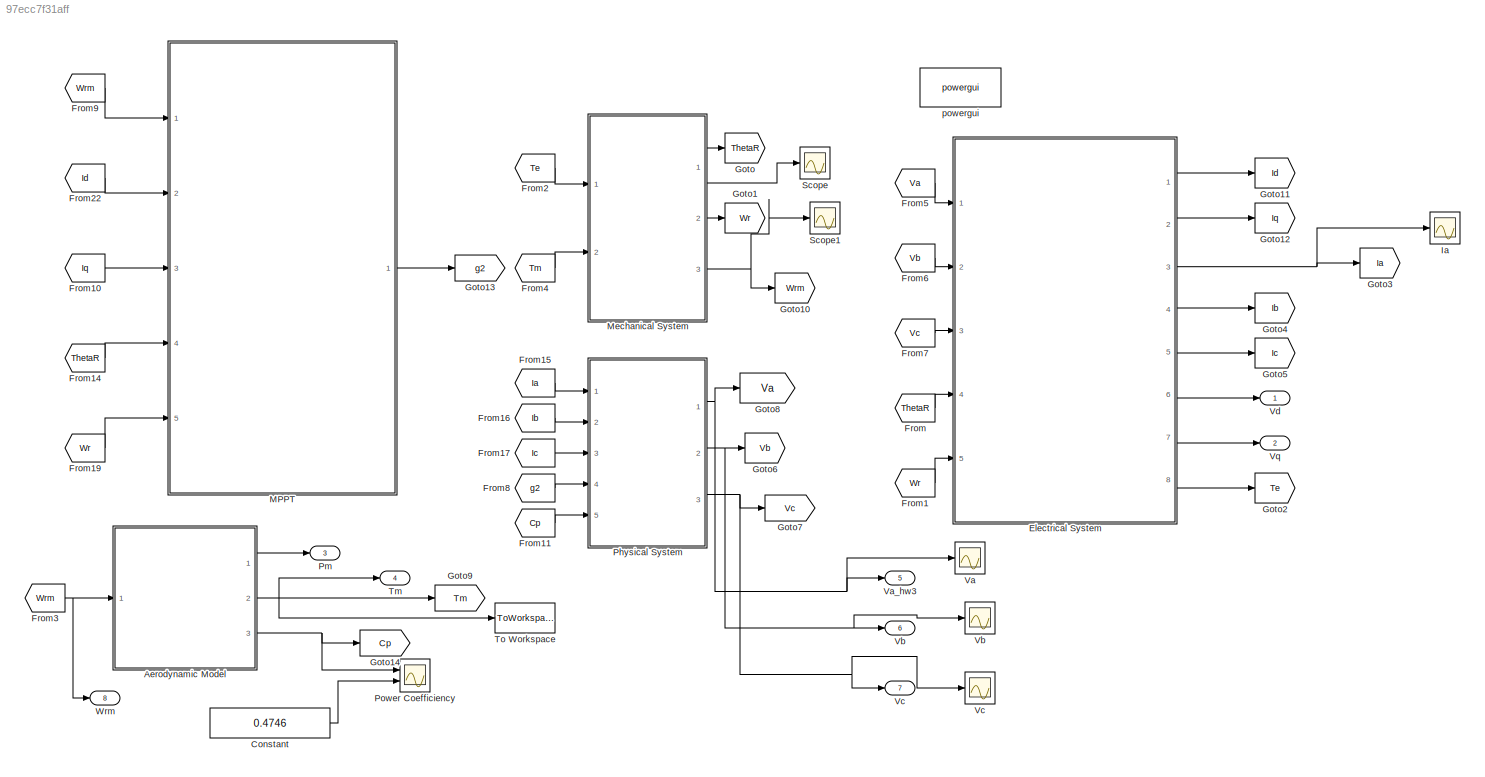
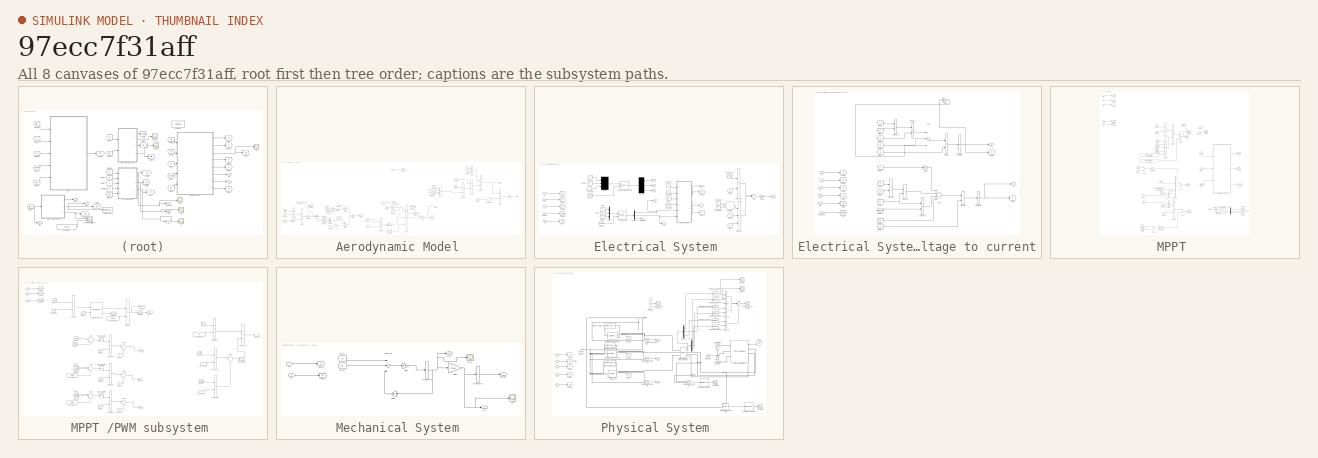
[diagram: thumbnail index - all 8 canvases of the model, root first then tree order]
MODEL slx_97ecc7f31aff
KIND model
CONFIG AbsTol = auto
CONFIG EnableMultiTasking = off
CONFIG FixedStep = auto
CONFIG MaxStep = auto
CONFIG MinStep = auto
CONFIG RelTol = 1e-3
CONFIG SampleTimeConstraint = Unconstrained
CONFIG Solver = ode45
CONFIG SolverName = ode45
CONFIG StartTime = 0.0
CONFIG StopTime = 4
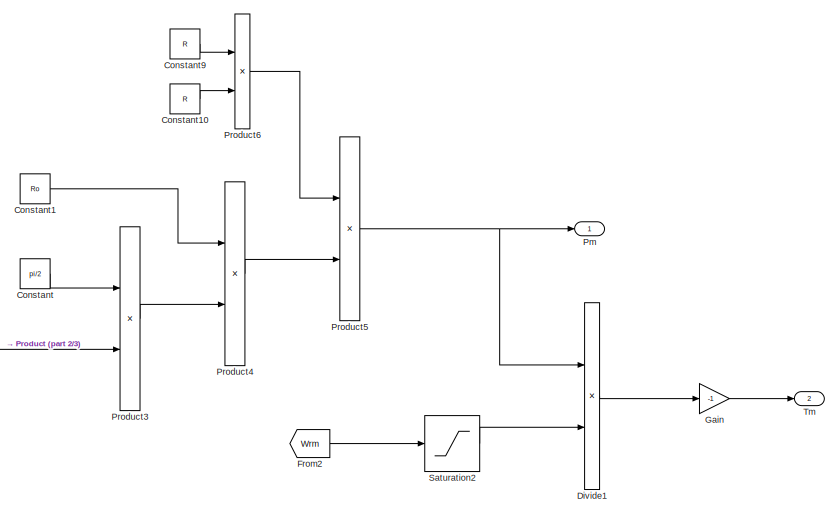
[diagram: Aerodynamic Model  - part 1/3, top right region]
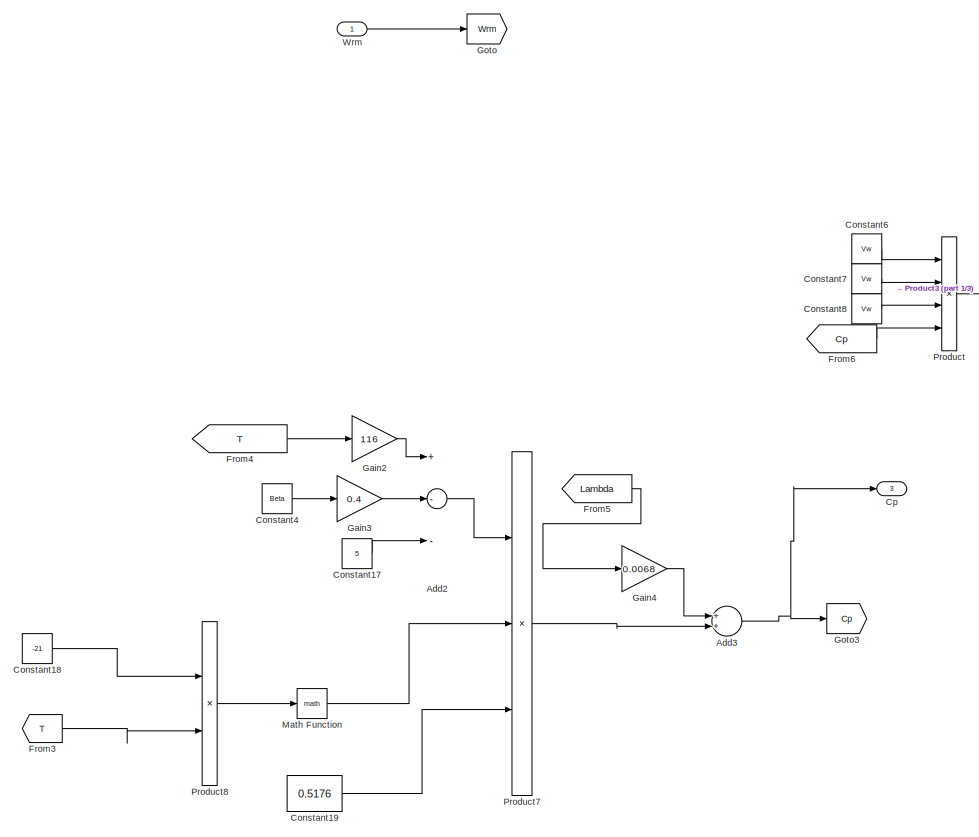
[diagram: Aerodynamic Model  - part 2/3, center side, full height]
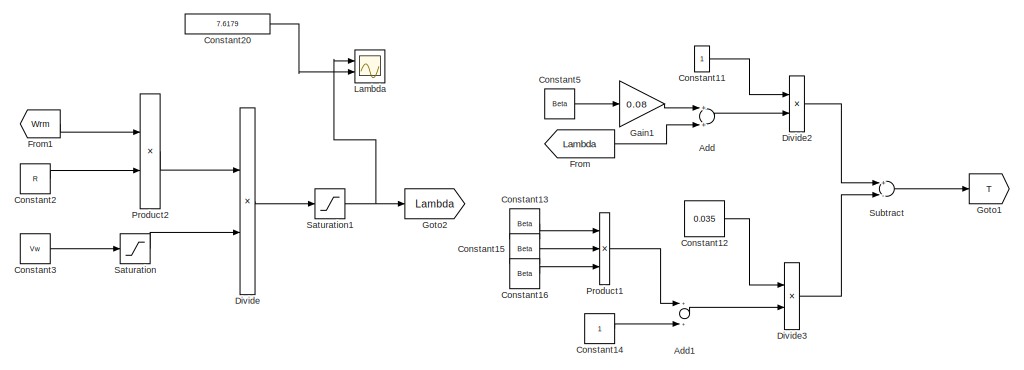
[diagram: Aerodynamic Model  - part 3/3, bottom left region]
BLOCK [SubSystem] Aerodynamic Model 
  Ports = [1, 3]
  RequestExecContextInheritance = off
BLOCK [Sum] Aerodynamic Model /Add
  InputSameDT = off
  OutDataTypeStr = Inherit: Inherit via internal rule
  Ports = [2, 1]
  SaturateOnIntegerOverflow = off
BLOCK [Sum] Aerodynamic Model /Add1
  InputSameDT = off
  OutDataTypeStr = Inherit: Inherit via internal rule
  Ports = [2, 1]
  SaturateOnIntegerOverflow = off
BLOCK [Sum] Aerodynamic Model /Add2
  InputSameDT = off
  Inputs = +--
  OutDataTypeStr = Inherit: Inherit via internal rule
  Ports = [3, 1]
  SaturateOnIntegerOverflow = off
BLOCK [Sum] Aerodynamic Model /Add3
  InputSameDT = off
  OutDataTypeStr = Inherit: Inherit via internal rule
  Ports = [2, 1]
  SaturateOnIntegerOverflow = off
BLOCK [Constant] Aerodynamic Model /Constant
  Value = pi/2
BLOCK [Constant] Aerodynamic Model /Constant1
  Value = Ro
BLOCK [Constant] Aerodynamic Model /Constant10
  Value = R
BLOCK [Constant] Aerodynamic Model /Constant11
BLOCK [Constant] Aerodynamic Model /Constant12
  Value = 0.035
BLOCK [Constant] Aerodynamic Model /Constant13
  Value = Beta
BLOCK [Constant] Aerodynamic Model /Constant14
BLOCK [Constant] Aerodynamic Model /Constant15
  Value = Beta
BLOCK [Constant] Aerodynamic Model /Constant16
  Value = Beta
BLOCK [Constant] Aerodynamic Model /Constant17
  Value = 5
BLOCK [Constant] Aerodynamic Model /Constant18
  Value = -21
BLOCK [Constant] Aerodynamic Model /Constant19
  Value = 0.5176
BLOCK [Constant] Aerodynamic Model /Constant2
  Value = R
BLOCK [Constant] Aerodynamic Model /Constant20
  Value = 7.6179
BLOCK [Constant] Aerodynamic Model /Constant3
  Value = Vw
BLOCK [Constant] Aerodynamic Model /Constant4
  Value = Beta
BLOCK [Constant] Aerodynamic Model /Constant5
  Value = Beta
BLOCK [Constant] Aerodynamic Model /Constant6
  Value = Vw
BLOCK [Constant] Aerodynamic Model /Constant7
  Value = Vw
BLOCK [Constant] Aerodynamic Model /Constant8
  Value = Vw
BLOCK [Constant] Aerodynamic Model /Constant9
  Value = R
BLOCK [Outport] Aerodynamic Model /Cp 
  IconDisplay = Port number
  Port = 3
BLOCK [Product] Aerodynamic Model /Divide
  InputSameDT = off
  Inputs = */
  OutDataTypeStr = Inherit: Inherit via internal rule
  Ports = [2, 1]
  RndMeth = Floor
  SaturateOnIntegerOverflow = off
BLOCK [Product] Aerodynamic Model /Divide1
  InputSameDT = off
  Inputs = */
  OutDataTypeStr = Inherit: Inherit via internal rule
  Ports = [2, 1]
  RndMeth = Floor
  SaturateOnIntegerOverflow = off
BLOCK [Product] Aerodynamic Model /Divide2
  InputSameDT = off
  Inputs = */
  OutDataTypeStr = Inherit: Inherit via internal rule
  Ports = [2, 1]
  RndMeth = Floor
  SaturateOnIntegerOverflow = off
BLOCK [Product] Aerodynamic Model /Divide3
  InputSameDT = off
  Inputs = */
  OutDataTypeStr = Inherit: Inherit via internal rule
  Ports = [2, 1]
  RndMeth = Floor
  SaturateOnIntegerOverflow = off
BLOCK [From] Aerodynamic Model /From
  GotoTag = Lambda
BLOCK [From] Aerodynamic Model /From1
  GotoTag = Wrm
BLOCK [From] Aerodynamic Model /From2
  GotoTag = Wrm
BLOCK [From] Aerodynamic Model /From3
  GotoTag = T
BLOCK [From] Aerodynamic Model /From4
  GotoTag = T
BLOCK [From] Aerodynamic Model /From5
  GotoTag = Lambda
BLOCK [From] Aerodynamic Model /From6
  GotoTag = Cp
BLOCK [Gain] Aerodynamic Model /Gain
  Gain = -1
  OutDataTypeStr = Inherit: Inherit via internal rule
  ParamDataTypeStr = Inherit: Inherit via internal rule
  SaturateOnIntegerOverflow = off
BLOCK [Gain] Aerodynamic Model /Gain1
  Gain = 0.08
  OutDataTypeStr = Inherit: Inherit via internal rule
  ParamDataTypeStr = Inherit: Inherit via internal rule
  SaturateOnIntegerOverflow = off
BLOCK [Gain] Aerodynamic Model /Gain2
  Gain = 116
  OutDataTypeStr = Inherit: Inherit via internal rule
  ParamDataTypeStr = Inherit: Inherit via internal rule
  SaturateOnIntegerOverflow = off
BLOCK [Gain] Aerodynamic Model /Gain3
  Gain = 0.4
  OutDataTypeStr = Inherit: Inherit via internal rule
  ParamDataTypeStr = Inherit: Inherit via internal rule
  SaturateOnIntegerOverflow = off
BLOCK [Gain] Aerodynamic Model /Gain4
  Gain = 0.0068
  OutDataTypeStr = Inherit: Inherit via internal rule
  ParamDataTypeStr = Inherit: Inherit via internal rule
  SaturateOnIntegerOverflow = off
BLOCK [Goto] Aerodynamic Model /Goto
  GotoTag = Wrm
BLOCK [Goto] Aerodynamic Model /Goto1
  GotoTag = T
BLOCK [Goto] Aerodynamic Model /Goto2
  GotoTag = Lambda
BLOCK [Goto] Aerodynamic Model /Goto3
  GotoTag = Cp
BLOCK [Scope] Aerodynamic Model /Lambda 
  Floating = off
  NumInputPorts = 2
  Ports = [2]
  ScopeSpecificationString = Simulink.scopes.TimeScopeBlockCfg('CurrentConfiguration', extmgr.ConfigurationSet(extmgr.Configuration('Core','General UI',true),extmgr.Configuration('Core','Source UI',true),extmgr.Configuration('Sources','WiredSimulink',true,'DataLoggingVariableName','ScopeData7'),extmgr.Configuration('Visuals','Time Domain',true,'SerializedDisplays',{struct('MinYLimReal','-0.95224','MaxYLimReal','8.57014','YLab...<+1410ch>
BLOCK [Math] Aerodynamic Model /Math Function
  Ports = [1, 1]
BLOCK [Outport] Aerodynamic Model /Pm
  IconDisplay = Port number
BLOCK [Product] Aerodynamic Model /Product
  InputSameDT = off
  Inputs = 4
  OutDataTypeStr = Inherit: Inherit via internal rule
  Ports = [4, 1]
  RndMeth = Floor
  SaturateOnIntegerOverflow = off
BLOCK [Product] Aerodynamic Model /Product1
  InputSameDT = off
  Inputs = 3
  OutDataTypeStr = Inherit: Inherit via internal rule
  Ports = [3, 1]
  RndMeth = Floor
  SaturateOnIntegerOverflow = off
BLOCK [Product] Aerodynamic Model /Product2
  InputSameDT = off
  OutDataTypeStr = Inherit: Inherit via internal rule
  Ports = [2, 1]
  RndMeth = Floor
  SaturateOnIntegerOverflow = off
BLOCK [Product] Aerodynamic Model /Product3
  InputSameDT = off
  OutDataTypeStr = Inherit: Inherit via internal rule
  Ports = [2, 1]
  RndMeth = Floor
  SaturateOnIntegerOverflow = off
BLOCK [Product] Aerodynamic Model /Product4
  InputSameDT = off
  OutDataTypeStr = Inherit: Inherit via internal rule
  Ports = [2, 1]
  RndMeth = Floor
  SaturateOnIntegerOverflow = off
BLOCK [Product] Aerodynamic Model /Product5
  InputSameDT = off
  OutDataTypeStr = Inherit: Inherit via internal rule
  Ports = [2, 1]
  RndMeth = Floor
  SaturateOnIntegerOverflow = off
BLOCK [Product] Aerodynamic Model /Product6
  InputSameDT = off
  OutDataTypeStr = Inherit: Inherit via internal rule
  Ports = [2, 1]
  RndMeth = Floor
  SaturateOnIntegerOverflow = off
BLOCK [Product] Aerodynamic Model /Product7
  InputSameDT = off
  Inputs = 3
  OutDataTypeStr = Inherit: Inherit via internal rule
  Ports = [3, 1]
  RndMeth = Floor
  SaturateOnIntegerOverflow = off
BLOCK [Product] Aerodynamic Model /Product8
  InputSameDT = off
  OutDataTypeStr = Inherit: Inherit via internal rule
  Ports = [2, 1]
  RndMeth = Floor
  SaturateOnIntegerOverflow = off
BLOCK [Saturate] Aerodynamic Model /Saturation
  InputPortMap = u0
  LowerLimit = 1e-6
  Ports = [1, 1]
  UpperLimit = 1e6
BLOCK [Saturate] Aerodynamic Model /Saturation1
  InputPortMap = u0
  LowerLimit = 1e-6
  Ports = [1, 1]
  UpperLimit = 1e6
BLOCK [Saturate] Aerodynamic Model /Saturation2
  InputPortMap = u0
  LowerLimit = 1e-6
  Ports = [1, 1]
  UpperLimit = 1e6
BLOCK [Sum] Aerodynamic Model /Subtract
  InputSameDT = off
  Inputs = +-
  OutDataTypeStr = Inherit: Inherit via internal rule
  Ports = [2, 1]
  SaturateOnIntegerOverflow = off
BLOCK [Outport] Aerodynamic Model /Tm
  IconDisplay = Port number
  Port = 2
BLOCK [Inport] Aerodynamic Model /Wrm 
  IconDisplay = Port number
BLOCK [Constant] Constant
  Value = 0.4746
BLOCK [SubSystem] Electrical System 
  Ports = [5, 8]
  RequestExecContextInheritance = off
  ShowPortLabels = SignalName
BLOCK [Sum] Electrical System /Add
  InputSameDT = off
  OutDataTypeStr = Inherit: Inherit via internal rule
  Ports = [2, 1]
  SaturateOnIntegerOverflow = off
BLOCK [Constant] Electrical System /Constant
  Value = Ld
BLOCK [Constant] Electrical System /Constant1
  Value = Lq
BLOCK [Constant] Electrical System /Constant10
  Value = Lambdam
BLOCK [Constant] Electrical System /Constant3
  Value = Lambdam
BLOCK [Constant] Electrical System /Constant4
  Value = 0
BLOCK [Constant] Electrical System /Constant8
  Value = Ld
BLOCK [Constant] Electrical System /Constant9
  Value = Lq
BLOCK [Demux] Electrical System /Demux
  DisplayOption = bar
  Outputs = 3
  Ports = [1, 3]
BLOCK [Demux] Electrical System /Demux1
  DisplayOption = bar
  Outputs = 3
  Ports = [1, 3]
BLOCK [From] Electrical System /From
  GotoTag = Va
BLOCK [From] Electrical System /From1
  GotoTag = Vb
BLOCK [From] Electrical System /From13
  GotoTag = Id
BLOCK [From] Electrical System /From14
  GotoTag = Iq
BLOCK [From] Electrical System /From15
  GotoTag = ThetaR
BLOCK [From] Electrical System /From2
  GotoTag = Id
BLOCK [From] Electrical System /From3
  GotoTag = ThetaR
BLOCK [From] Electrical System /From4
  GotoTag = Vc
BLOCK [From] Electrical System /From5
  GotoTag = Iq
BLOCK [From] Electrical System /From6
  GotoTag = Iq
BLOCK [From] Electrical System /From7
  GotoTag = Wr
BLOCK [Gain] Electrical System /Gain
  Gain = 1.5*Pole
  OutDataTypeStr = Inherit: Inherit via internal rule
  ParamDataTypeStr = Inherit: Inherit via internal rule
  SaturateOnIntegerOverflow = off
BLOCK [Goto] Electrical System /Goto
  GotoTag = Va
BLOCK [Goto] Electrical System /Goto1
  GotoTag = Vb
BLOCK [Goto] Electrical System /Goto10
  GotoTag = Id
BLOCK [Goto] Electrical System /Goto11
  GotoTag = Iq
BLOCK [Goto] Electrical System /Goto2
  GotoTag = Vc
BLOCK [Goto] Electrical System /Goto3
  GotoTag = ThetaR
BLOCK [Goto] Electrical System /Goto5
  GotoTag = Wr
BLOCK [Outport] Electrical System /Ia
  IconDisplay = Port number
  Port = 3
BLOCK [Outport] Electrical System /Ib
  IconDisplay = Port number
  Port = 4
BLOCK [Outport] Electrical System /Ic
  IconDisplay = Port number
  Port = 5
BLOCK [Outport] Electrical System /Id
  IconDisplay = Port number
BLOCK [Reference] Electrical System /Inverse Park Transform  REF=peTransforms/Inverse
Park Transform
  Ports = [2, 1]
  SourceBlock = peTransforms/Inverse\nPark Transform
  SourceType = Inverse Park Transform
BLOCK [Outport] Electrical System /Iq
  IconDisplay = Port number
  Port = 2
BLOCK [Mux] Electrical System /Mux
  DisplayOption = bar
  Inputs = 3
  Ports = [3, 1]
BLOCK [Mux] Electrical System /Mux1
  DisplayOption = bar
  Inputs = 3
  Ports = [3, 1]
BLOCK [Reference] Electrical System /Park Transform  REF=peTransforms/Park Transform
  Ports = [2, 1]
  SourceBlock = peTransforms/Park Transform
  SourceType = Park Transform
BLOCK [Product] Electrical System /Product
  InputSameDT = off
  Inputs = 3
  OutDataTypeStr = Inherit: Inherit via internal rule
  Ports = [3, 1]
  RndMeth = Floor
  SaturateOnIntegerOverflow = off
BLOCK [Product] Electrical System /Product1
  InputSameDT = off
  OutDataTypeStr = Inherit: Inherit via internal rule
  Ports = [2, 1]
  RndMeth = Floor
  SaturateOnIntegerOverflow = off
BLOCK [Sum] Electrical System /Subtract
  InputSameDT = off
  Inputs = +-
  OutDataTypeStr = Inherit: Inherit via internal rule
  Ports = [2, 1]
  SaturateOnIntegerOverflow = off
BLOCK [Outport] Electrical System /Te 
  IconDisplay = Port number
  Port = 8
BLOCK [Terminator] Electrical System /Terminator
BLOCK [Inport] Electrical System /ThetaR
  IconDisplay = Port number
  Port = 4
BLOCK [Inport] Electrical System /Va
  IconDisplay = Port number
BLOCK [Inport] Electrical System /Vb
  IconDisplay = Port number
  Port = 2
BLOCK [Inport] Electrical System /Vc
  IconDisplay = Port number
  Port = 3
BLOCK [Outport] Electrical System /Vd 
  IconDisplay = Port number
  Port = 6
BLOCK [Outport] Electrical System /Vq 
  IconDisplay = Port number
  Port = 7
BLOCK [Inport] Electrical System /Wr
  IconDisplay = Port number
  Port = 5
BLOCK [SubSystem] Electrical System /voltage to current
  Ports = [6, 2]
  RequestExecContextInheritance = off
  ShowPortLabels = SignalName
BLOCK [Sum] Electrical System /voltage to current/Add
  InputSameDT = off
  Inputs = ++-
  OutDataTypeStr = Inherit: Inherit via internal rule
  Ports = [3, 1]
  SaturateOnIntegerOverflow = off
BLOCK [Sum] Electrical System /voltage to current/Add1
  InputSameDT = off
  Inputs = ---+
  OutDataTypeStr = Inherit: Inherit via internal rule
  Ports = [4, 1]
  SaturateOnIntegerOverflow = off
BLOCK [Product] Electrical System /voltage to current/Divide
  InputSameDT = off
  Inputs = */
  OutDataTypeStr = Inherit: Inherit via internal rule
  Ports = [2, 1]
  RndMeth = Floor
  SaturateOnIntegerOverflow = off
BLOCK [Product] Electrical System /voltage to current/Divide1
  InputSameDT = off
  Inputs = */
  OutDataTypeStr = Inherit: Inherit via internal rule
  Ports = [2, 1]
  RndMeth = Floor
  SaturateOnIntegerOverflow = off
BLOCK [From] Electrical System /voltage to current/From10
  GotoTag = Wr
BLOCK [From] Electrical System /voltage to current/From11
  GotoTag = Lambdam
BLOCK [From] Electrical System /voltage to current/From12
  GotoTag = Vq
BLOCK [From] Electrical System /voltage to current/From13
  GotoTag = Lq
BLOCK [From] Electrical System /voltage to current/From2
  GotoTag = Iq
BLOCK [From] Electrical System /voltage to current/From3
  GotoTag = Iq
BLOCK [From] Electrical System /voltage to current/From4
  GotoTag = Wr
BLOCK [From] Electrical System /voltage to current/From5
  GotoTag = Lq
BLOCK [From] Electrical System /voltage to current/From6
  GotoTag = Vd
BLOCK [From] Electrical System /voltage to current/From7
  GotoTag = Ld
BLOCK [From] Electrical System /voltage to current/From8
  GotoTag = Ld
BLOCK [From] Electrical System /voltage to current/From9
  GotoTag = Id
BLOCK [Gain] Electrical System /voltage to current/Gain
  Gain = Rs
  OutDataTypeStr = Inherit: Inherit via internal rule
  ParamDataTypeStr = Inherit: Inherit via internal rule
  SaturateOnIntegerOverflow = off
BLOCK [Gain] Electrical System /voltage to current/Gain1
  Gain = Rs
  OutDataTypeStr = Inherit: Inherit via internal rule
  ParamDataTypeStr = Inherit: Inherit via internal rule
  SaturateOnIntegerOverflow = off
BLOCK [Goto] Electrical System /voltage to current/Goto1
  GotoTag = Lq
BLOCK [Goto] Electrical System /voltage to current/Goto2
  GotoTag = Wr
BLOCK [Goto] Electrical System /voltage to current/Goto3
  GotoTag = Ld
BLOCK [Goto] Electrical System /voltage to current/Goto4
  GotoTag = Id
BLOCK [Goto] Electrical System /voltage to current/Goto5
  GotoTag = Iq
BLOCK [Goto] Electrical System /voltage to current/Goto7
  GotoTag = Lambdam
BLOCK [Goto] Electrical System /voltage to current/Goto8
  GotoTag = Vd
BLOCK [Goto] Electrical System /voltage to current/Goto9
  GotoTag = Vq
  IconDisplay = Tag and signal name
BLOCK [Outport] Electrical System /voltage to current/Id
  IconDisplay = Port number
BLOCK [Integrator] Electrical System /voltage to current/Integrator
  Ports = [1, 1]
BLOCK [Integrator] Electrical System /voltage to current/Integrator1
  Ports = [1, 1]
BLOCK [Outport] Electrical System /voltage to current/Iq
  IconDisplay = Port number
  Port = 2
BLOCK [Inport] Electrical System /voltage to current/Lambdam
  IconDisplay = Port number
  Port = 4
BLOCK [Inport] Electrical System /voltage to current/Ld
  IconDisplay = Port number
BLOCK [Inport] Electrical System /voltage to current/Lq 
  IconDisplay = Port number
  Port = 2
BLOCK [Product] Electrical System /voltage to current/Product
  InputSameDT = off
  OutDataTypeStr = Inherit: Inherit via internal rule
  Ports = [2, 1]
  RndMeth = Floor
  SaturateOnIntegerOverflow = off
BLOCK [Product] Electrical System /voltage to current/Product1
  InputSameDT = off
  OutDataTypeStr = Inherit: Inherit via internal rule
  Ports = [2, 1]
  RndMeth = Floor
  SaturateOnIntegerOverflow = off
BLOCK [Product] Electrical System /voltage to current/Product2
  InputSameDT = off
  OutDataTypeStr = Inherit: Inherit via internal rule
  Ports = [2, 1]
  RndMeth = Floor
  SaturateOnIntegerOverflow = off
BLOCK [Product] Electrical System /voltage to current/Product3
  InputSameDT = off
  OutDataTypeStr = Inherit: Inherit via internal rule
  Ports = [2, 1]
  RndMeth = Floor
  SaturateOnIntegerOverflow = off
BLOCK [Product] Electrical System /voltage to current/Product4
  InputSameDT = off
  OutDataTypeStr = Inherit: Inherit via internal rule
  Ports = [2, 1]
  RndMeth = Floor
  SaturateOnIntegerOverflow = off
BLOCK [Inport] Electrical System /voltage to current/Vd 
  IconDisplay = Port number
  Port = 5
BLOCK [Inport] Electrical System /voltage to current/Vq
  IconDisplay = Port number
  Port = 6
BLOCK [Inport] Electrical System /voltage to current/Wr
  IconDisplay = Port number
  Port = 3
BLOCK [From] From
  GotoTag = ThetaR
BLOCK [From] From1
  GotoTag = Wr
BLOCK [From] From10
  GotoTag = Iq
BLOCK [From] From11
  GotoTag = Cp
BLOCK [From] From14
  GotoTag = ThetaR
BLOCK [From] From15
  GotoTag = Ia
BLOCK [From] From16
  GotoTag = Ib
BLOCK [From] From17
  GotoTag = Ic
BLOCK [From] From19
  GotoTag = Wr
BLOCK [From] From2
  GotoTag = Te
BLOCK [From] From22
  GotoTag = Id
BLOCK [From] From3
  GotoTag = Wrm
BLOCK [From] From4
  GotoTag = Tm
BLOCK [From] From5
  GotoTag = Va
BLOCK [From] From6
  GotoTag = Vb
BLOCK [From] From7
  GotoTag = Vc
BLOCK [From] From8
  GotoTag = g2
BLOCK [From] From9
  GotoTag = Wrm
BLOCK [Goto] Goto
  GotoTag = ThetaR
BLOCK [Goto] Goto1
  GotoTag = Wr
BLOCK [Goto] Goto10
  GotoTag = Wrm
BLOCK [Goto] Goto11
  GotoTag = Id
BLOCK [Goto] Goto12
  GotoTag = Iq
BLOCK [Goto] Goto13
  GotoTag = g2
BLOCK [Goto] Goto14
  GotoTag = Cp
BLOCK [Goto] Goto2
  GotoTag = Te
BLOCK [Goto] Goto3
  GotoTag = Ia
BLOCK [Goto] Goto4
  GotoTag = Ib
BLOCK [Goto] Goto5
  GotoTag = Ic
BLOCK [Goto] Goto6
  GotoTag = Vb
BLOCK [Goto] Goto7
  GotoTag = Vc
BLOCK [Goto] Goto8
  GotoTag = Va
BLOCK [Goto] Goto9
  GotoTag = Tm
BLOCK [Scope] Ia
  Floating = off
  NumInputPorts = 1
  Ports = [1]
  ScopeSpecificationString = Simulink.scopes.TimeScopeBlockCfg('CurrentConfiguration', extmgr.ConfigurationSet(extmgr.Configuration('Core','General UI',true),extmgr.Configuration('Core','Source UI',true),extmgr.Configuration('Sources','WiredSimulink',true,'DataLoggingVariableName','ScopeData13'),extmgr.Configuration('Visuals','Time Domain',true,'SerializedDisplays',{struct('MinYLimReal','-1638.4223','MaxYLimReal','1635.09083'...<+1425ch>
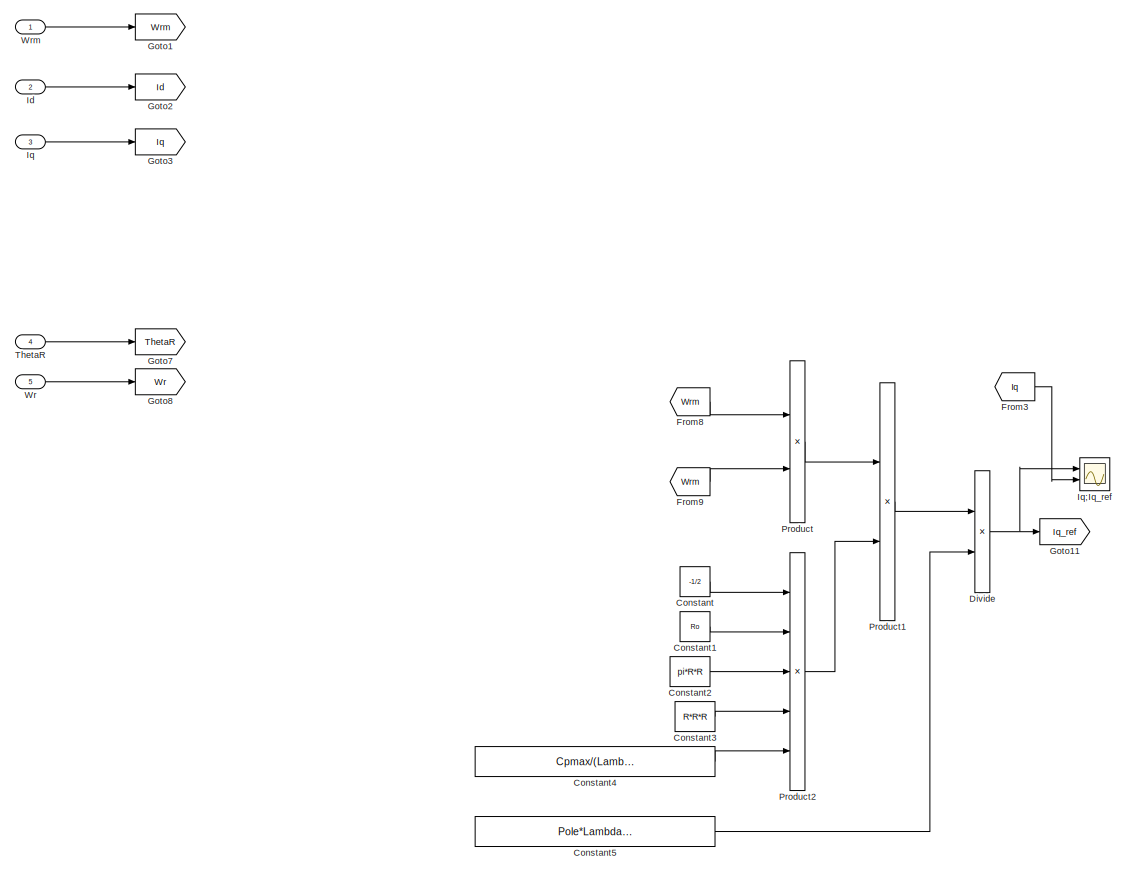
[diagram: MPPT  - part 1/3, top left region]
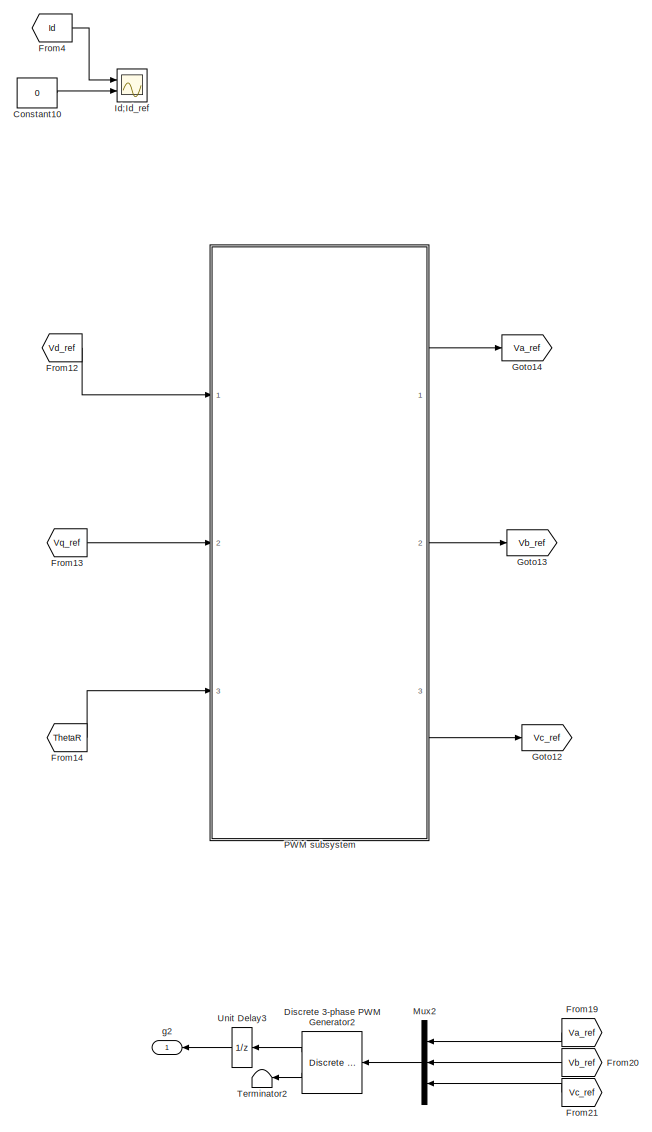
[diagram: MPPT  - part 2/3, middle right region]
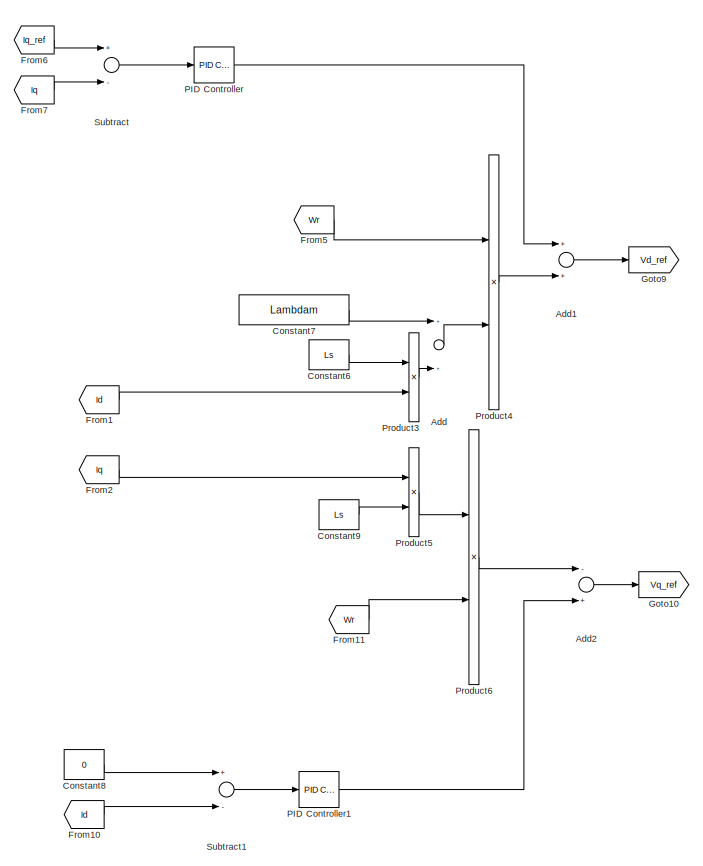
[diagram: MPPT  - part 3/3, bottom center region]
BLOCK [SubSystem] MPPT 
  Ports = [5, 1]
  RequestExecContextInheritance = off
BLOCK [Sum] MPPT /Add
  InputSameDT = off
  OutDataTypeStr = Inherit: Inherit via internal rule
  Ports = [2, 1]
  SaturateOnIntegerOverflow = off
BLOCK [Sum] MPPT /Add1
  InputSameDT = off
  OutDataTypeStr = Inherit: Inherit via internal rule
  Ports = [2, 1]
  SaturateOnIntegerOverflow = off
BLOCK [Sum] MPPT /Add2
  InputSameDT = off
  Inputs = -+
  OutDataTypeStr = Inherit: Inherit via internal rule
  Ports = [2, 1]
  SaturateOnIntegerOverflow = off
BLOCK [Constant] MPPT /Constant
  Value = -1/2
BLOCK [Constant] MPPT /Constant1
  Value = Ro
BLOCK [Constant] MPPT /Constant10
  Value = 0
BLOCK [Constant] MPPT /Constant2
  Value = pi*R*R
BLOCK [Constant] MPPT /Constant3
  Value = R*R*R
BLOCK [Constant] MPPT /Constant4
  Value = Cpmax/(Lambda_opt*Lambda_opt*Lambda_opt)
BLOCK [Constant] MPPT /Constant5
  Value = Pole*Lambdam*1.5
BLOCK [Constant] MPPT /Constant6
  Value = Ls
BLOCK [Constant] MPPT /Constant7
  Value = Lambdam
BLOCK [Constant] MPPT /Constant8
  Value = 0
BLOCK [Constant] MPPT /Constant9
  Value = Ls
BLOCK [Reference] MPPT /Discrete 3-phase PWM Generator2  REF=powerlib_extras/Discrete 
Control Blocks/Discrete 3-phase
PWM Generator
  Ports = [1, 2]
  SourceBlock = powerlib_extras/Discrete \nControl Blocks/Discrete 3-phase\nPWM Generator
  SourceType = Discrete 3-phase PWM Generator (2- or 3-level)
BLOCK [Product] MPPT /Divide
  InputSameDT = off
  Inputs = */
  OutDataTypeStr = Inherit: Inherit via internal rule
  Ports = [2, 1]
  RndMeth = Floor
  SaturateOnIntegerOverflow = off
BLOCK [From] MPPT /From1
  GotoTag = Id
BLOCK [From] MPPT /From10
  GotoTag = Id
BLOCK [From] MPPT /From11
  GotoTag = Wr
BLOCK [From] MPPT /From12
  GotoTag = Vd_ref
BLOCK [From] MPPT /From13
  GotoTag = Vq_ref
BLOCK [From] MPPT /From14
  GotoTag = ThetaR
BLOCK [From] MPPT /From19
  GotoTag = Va_ref
BLOCK [From] MPPT /From2
  GotoTag = Iq
BLOCK [From] MPPT /From20
  GotoTag = Vb_ref
BLOCK [From] MPPT /From21
  GotoTag = Vc_ref
BLOCK [From] MPPT /From3
  GotoTag = Iq
BLOCK [From] MPPT /From4
  GotoTag = Id
BLOCK [From] MPPT /From5
  GotoTag = Wr
BLOCK [From] MPPT /From6
  GotoTag = Iq_ref
BLOCK [From] MPPT /From7
  GotoTag = Iq
BLOCK [From] MPPT /From8
  GotoTag = Wrm
BLOCK [From] MPPT /From9
  GotoTag = Wrm
BLOCK [Goto] MPPT /Goto1
  GotoTag = Wrm
BLOCK [Goto] MPPT /Goto10
  GotoTag = Vq_ref
BLOCK [Goto] MPPT /Goto11
  GotoTag = Iq_ref
BLOCK [Goto] MPPT /Goto12
  GotoTag = Vc_ref
BLOCK [Goto] MPPT /Goto13
  GotoTag = Vb_ref
BLOCK [Goto] MPPT /Goto14
  GotoTag = Va_ref
BLOCK [Goto] MPPT /Goto2
  GotoTag = Id
BLOCK [Goto] MPPT /Goto3
  GotoTag = Iq
BLOCK [Goto] MPPT /Goto7
  GotoTag = ThetaR
BLOCK [Goto] MPPT /Goto8
  GotoTag = Wr
BLOCK [Goto] MPPT /Goto9
  GotoTag = Vd_ref
BLOCK [Inport] MPPT /Id 
  IconDisplay = Port number
  Port = 2
BLOCK [Scope] MPPT /Id;Id_ref 
  Floating = off
  NumInputPorts = 2
  Ports = [2]
  ScopeSpecificationString = Simulink.scopes.TimeScopeBlockCfg('CurrentConfiguration', extmgr.ConfigurationSet(extmgr.Configuration('Core','General UI',true,'FigureColor',[1 1 1]),extmgr.Configuration('Core','Source UI',true),extmgr.Configuration('Sources','WiredSimulink',true,'DataLoggingVariableName','ScopeData9'),extmgr.Configuration('Visuals','Time Domain',true,'SerializedDisplays',{struct('MinYLimReal','-98.21754','MaxYL...<+1932ch>
BLOCK [Inport] MPPT /Iq 
  IconDisplay = Port number
  Port = 3
BLOCK [Scope] MPPT /Iq;Iq_ref 
  Floating = off
  NumInputPorts = 2
  Ports = [2]
  ScopeSpecificationString = Simulink.scopes.TimeScopeBlockCfg('CurrentConfiguration', extmgr.ConfigurationSet(extmgr.Configuration('Core','General UI',true,'FigureColor',[1 1 1]),extmgr.Configuration('Core','Source UI',true),extmgr.Configuration('Sources','WiredSimulink',true,'DataLoggingVariableName','ScopeData5'),extmgr.Configuration('Visuals','Time Domain',true,'SerializedDisplays',{struct('MinYLimReal','-1489.41662','Max...<+1894ch>
BLOCK [Mux] MPPT /Mux2
  DisplayOption = bar
  Inputs = 3
  Ports = [3, 1]
BLOCK [Reference] MPPT /PID Controller  REF=simulink/Continuous/PID Controller
  Ports = [1, 1]
  SourceBlock = simulink/Continuous/PID Controller
  SourceProductBaseCode = SL
  SourceProductName = Simulink
  SourceType = PID 1dof
BLOCK [Reference] MPPT /PID Controller1  REF=simulink/Continuous/PID Controller
  Ports = [1, 1]
  SourceBlock = simulink/Continuous/PID Controller
  SourceProductBaseCode = SL
  SourceProductName = Simulink
  SourceType = PID 1dof
BLOCK [SubSystem] MPPT /PWM subsystem 
  Ports = [3, 3]
  RequestExecContextInheritance = off
BLOCK [Reference] MPPT /PWM subsystem /Cartesian to Polar  REF=simulink_extras/Transformations/Cartesian to
Polar
  Ports = [2, 2]
  SourceBlock = simulink_extras/Transformations/Cartesian to\nPolar
  SourceProductBaseCode = SL
  SourceProductName = Simulink
  SourceType = Cart2Polar
BLOCK [Constant] MPPT /PWM subsystem /Constant10
  Value = -1
BLOCK [Constant] MPPT /PWM subsystem /Constant11
  Value = 2690
BLOCK [Constant] MPPT /PWM subsystem /Constant12
  Value = -2*pi/3
BLOCK [Constant] MPPT /PWM subsystem /Constant13
  Value = 2*pi/3
BLOCK [Constant] MPPT /PWM subsystem /Constant14
  Value = 1/6
BLOCK [Constant] MPPT /PWM subsystem /Constant15
  Value = 3
BLOCK [Constant] MPPT /PWM subsystem /Constant16
  Value = 3
BLOCK [Product] MPPT /PWM subsystem /Divide1
  InputSameDT = off
  Inputs = */
  OutDataTypeStr = Inherit: Inherit via internal rule
  Ports = [2, 1]
  RndMeth = Floor
  SaturateOnIntegerOverflow = off
BLOCK [From] MPPT /PWM subsystem /From12
  GotoTag = Vd_ref
BLOCK [From] MPPT /PWM subsystem /From13
  GotoTag = Vq_ref
BLOCK [From] MPPT /PWM subsystem /From14
  GotoTag = Theta
BLOCK [From] MPPT /PWM subsystem /From15
  GotoTag = ThetaR
BLOCK [From] MPPT /PWM subsystem /From16
  GotoTag = ma
BLOCK [From] MPPT /PWM subsystem /From17
  GotoTag = Theta
BLOCK [From] MPPT /PWM subsystem /From18
  GotoTag = ThetaR
BLOCK [From] MPPT /PWM subsystem /From19
  GotoTag = ma
BLOCK [From] MPPT /PWM subsystem /From20
  GotoTag = Theta
BLOCK [From] MPPT /PWM subsystem /From21
  GotoTag = ThetaR
BLOCK [From] MPPT /PWM subsystem /From22
  GotoTag = ma
BLOCK [From] MPPT /PWM subsystem /From23
  GotoTag = ma_
BLOCK [From] MPPT /PWM subsystem /From24
  GotoTag = Theta
BLOCK [From] MPPT /PWM subsystem /From25
  GotoTag = ThetaR
BLOCK [From] MPPT /PWM subsystem /From26
  GotoTag = Z
BLOCK [From] MPPT /PWM subsystem /From27
  GotoTag = Z
BLOCK [From] MPPT /PWM subsystem /From28
  GotoTag = Z
BLOCK [Goto] MPPT /PWM subsystem /Goto1
  GotoTag = Vd_ref
BLOCK [Goto] MPPT /PWM subsystem /Goto12
  GotoTag = Theta
BLOCK [Goto] MPPT /PWM subsystem /Goto13
  GotoTag = ma
BLOCK [Goto] MPPT /PWM subsystem /Goto17
  GotoTag = ma_
BLOCK [Goto] MPPT /PWM subsystem /Goto18
  GotoTag = Z
BLOCK [Goto] MPPT /PWM subsystem /Goto2
  GotoTag = Vq_ref
BLOCK [Goto] MPPT /PWM subsystem /Goto3
  GotoTag = ThetaR
BLOCK [Product] MPPT /PWM subsystem /Product10
  InputSameDT = off
  OutDataTypeStr = Inherit: Inherit via internal rule
  Ports = [2, 1]
  RndMeth = Floor
  SaturateOnIntegerOverflow = off
BLOCK [Product] MPPT /PWM subsystem /Product11
  InputSameDT = off
  OutDataTypeStr = Inherit: Inherit via internal rule
  Ports = [2, 1]
  RndMeth = Floor
  SaturateOnIntegerOverflow = off
BLOCK [Product] MPPT /PWM subsystem /Product12
  InputSameDT = off
  OutDataTypeStr = Inherit: Inherit via internal rule
  Ports = [2, 1]
  RndMeth = Floor
  SaturateOnIntegerOverflow = off
BLOCK [Product] MPPT /PWM subsystem /Product13
  InputSameDT = off
  OutDataTypeStr = Inherit: Inherit via internal rule
  Ports = [2, 1]
  RndMeth = Floor
  SaturateOnIntegerOverflow = off
BLOCK [Product] MPPT /PWM subsystem /Product14
  InputSameDT = off
  OutDataTypeStr = Inherit: Inherit via internal rule
  Ports = [2, 1]
  RndMeth = Floor
  SaturateOnIntegerOverflow = off
BLOCK [Product] MPPT /PWM subsystem /Product7
  InputSameDT = off
  OutDataTypeStr = Inherit: Inherit via internal rule
  Ports = [2, 1]
  RndMeth = Floor
  SaturateOnIntegerOverflow = off
BLOCK [Product] MPPT /PWM subsystem /Product8
  InputSameDT = off
  OutDataTypeStr = Inherit: Inherit via internal rule
  Ports = [2, 1]
  RndMeth = Floor
  SaturateOnIntegerOverflow = off
BLOCK [Product] MPPT /PWM subsystem /Product9
  InputSameDT = off
  OutDataTypeStr = Inherit: Inherit via internal rule
  Ports = [2, 1]
  RndMeth = Floor
  SaturateOnIntegerOverflow = off
BLOCK [Saturate] MPPT /PWM subsystem /Saturation
  InputPortMap = u0
  LowerLimit = 0
  Ports = [1, 1]
  UpperLimit = 1.15
BLOCK [Sum] MPPT /PWM subsystem /Sum
  IconShape = round
  InputSameDT = off
  Inputs = |+++
  OutDataTypeStr = Inherit: Inherit via internal rule
  Ports = [3, 1]
  SaturateOnIntegerOverflow = off
BLOCK [Sum] MPPT /PWM subsystem /Sum1
  IconShape = round
  InputSameDT = off
  Inputs = |++
  OutDataTypeStr = Inherit: Inherit via internal rule
  Ports = [2, 1]
  SaturateOnIntegerOverflow = off
BLOCK [Sum] MPPT /PWM subsystem /Sum2
  IconShape = round
  InputSameDT = off
  Inputs = |+++
  OutDataTypeStr = Inherit: Inherit via internal rule
  Ports = [3, 1]
  SaturateOnIntegerOverflow = off
BLOCK [Sum] MPPT /PWM subsystem /Sum3
  IconShape = round
  InputSameDT = off
  Inputs = |++
  OutDataTypeStr = Inherit: Inherit via internal rule
  Ports = [2, 1]
  SaturateOnIntegerOverflow = off
BLOCK [Sum] MPPT /PWM subsystem /Sum4
  IconShape = round
  InputSameDT = off
  Inputs = |++
  OutDataTypeStr = Inherit: Inherit via internal rule
  Ports = [2, 1]
  SaturateOnIntegerOverflow = off
BLOCK [Sum] MPPT /PWM subsystem /Sum5
  IconShape = round
  InputSameDT = off
  Inputs = |++
  OutDataTypeStr = Inherit: Inherit via internal rule
  Ports = [2, 1]
  SaturateOnIntegerOverflow = off
BLOCK [Sum] MPPT /PWM subsystem /Sum6
  IconShape = round
  InputSameDT = off
  Inputs = |++
  OutDataTypeStr = Inherit: Inherit via internal rule
  Ports = [2, 1]
  SaturateOnIntegerOverflow = off
BLOCK [Inport] MPPT /PWM subsystem /ThetaR 
  IconDisplay = Port number
  Port = 3
BLOCK [Trigonometry] MPPT /PWM subsystem /Trigonometric Function
  Ports = [1, 1]
BLOCK [Trigonometry] MPPT /PWM subsystem /Trigonometric Function1
  Ports = [1, 1]
BLOCK [Trigonometry] MPPT /PWM subsystem /Trigonometric Function2
  Ports = [1, 1]
BLOCK [Trigonometry] MPPT /PWM subsystem /Trigonometric Function3
  Ports = [1, 1]
BLOCK [Outport] MPPT /PWM subsystem /Va_ref 
  IconDisplay = Port number
BLOCK [Outport] MPPT /PWM subsystem /Vb_ref 
  IconDisplay = Port number
  Port = 2
BLOCK [Outport] MPPT /PWM subsystem /Vc_ref 
  IconDisplay = Port number
  Port = 3
BLOCK [Inport] MPPT /PWM subsystem /Vd_ref 
  IconDisplay = Port number
BLOCK [Inport] MPPT /PWM subsystem /Vq_ref 
  IconDisplay = Port number
  Port = 2
BLOCK [Product] MPPT /Product
  InputSameDT = off
  OutDataTypeStr = Inherit: Inherit via internal rule
  Ports = [2, 1]
  RndMeth = Floor
  SaturateOnIntegerOverflow = off
BLOCK [Product] MPPT /Product1
  InputSameDT = off
  OutDataTypeStr = Inherit: Inherit via internal rule
  Ports = [2, 1]
  RndMeth = Floor
  SaturateOnIntegerOverflow = off
BLOCK [Product] MPPT /Product2
  InputSameDT = off
  Inputs = 5
  OutDataTypeStr = Inherit: Inherit via internal rule
  Ports = [5, 1]
  RndMeth = Floor
  SaturateOnIntegerOverflow = off
BLOCK [Product] MPPT /Product3
  InputSameDT = off
  OutDataTypeStr = Inherit: Inherit via internal rule
  Ports = [2, 1]
  RndMeth = Floor
  SaturateOnIntegerOverflow = off
BLOCK [Product] MPPT /Product4
  InputSameDT = off
  OutDataTypeStr = Inherit: Inherit via internal rule
  Ports = [2, 1]
  RndMeth = Floor
  SaturateOnIntegerOverflow = off
BLOCK [Product] MPPT /Product5
  InputSameDT = off
  OutDataTypeStr = Inherit: Inherit via internal rule
  Ports = [2, 1]
  RndMeth = Floor
  SaturateOnIntegerOverflow = off
BLOCK [Product] MPPT /Product6
  InputSameDT = off
  OutDataTypeStr = Inherit: Inherit via internal rule
  Ports = [2, 1]
  RndMeth = Floor
  SaturateOnIntegerOverflow = off
BLOCK [Sum] MPPT /Subtract
  InputSameDT = off
  Inputs = +-
  OutDataTypeStr = Inherit: Inherit via internal rule
  Ports = [2, 1]
  SaturateOnIntegerOverflow = off
BLOCK [Sum] MPPT /Subtract1
  InputSameDT = off
  Inputs = +-
  OutDataTypeStr = Inherit: Inherit via internal rule
  Ports = [2, 1]
  SaturateOnIntegerOverflow = off
BLOCK [Terminator] MPPT /Terminator2
BLOCK [Inport] MPPT /ThetaR 
  IconDisplay = Port number
  Port = 4
BLOCK [UnitDelay] MPPT /Unit Delay3
  SampleTime = Ts
BLOCK [Inport] MPPT /Wr 
  IconDisplay = Port number
  Port = 5
BLOCK [Inport] MPPT /Wrm
  IconDisplay = Port number
BLOCK [Outport] MPPT /g2
  IconDisplay = Port number
BLOCK [SubSystem] Mechanical System 
  Ports = [2, 3]
  RequestExecContextInheritance = off
BLOCK [From] Mechanical System /From1
  GotoTag = Tm
BLOCK [From] Mechanical System /From4
  GotoTag = Te
BLOCK [Gain] Mechanical System /Gain
  Gain = 1/Inertia
  OutDataTypeStr = Inherit: Inherit via internal rule
  ParamDataTypeStr = Inherit: Inherit via internal rule
  SaturateOnIntegerOverflow = off
BLOCK [Gain] Mechanical System /Gain1
  Gain = Friction
  OutDataTypeStr = Inherit: Inherit via internal rule
  ParamDataTypeStr = Inherit: Inherit via internal rule
  SaturateOnIntegerOverflow = off
BLOCK [Gain] Mechanical System /Gain2
  Gain = Pole
  OutDataTypeStr = Inherit: Inherit via internal rule
  ParamDataTypeStr = Inherit: Inherit via internal rule
  SaturateOnIntegerOverflow = off
BLOCK [Goto] Mechanical System /Goto1
  GotoTag = Tm
BLOCK [Goto] Mechanical System /Goto4
  GotoTag = Te
BLOCK [Integrator] Mechanical System /Integrator
  Ports = [1, 1]
BLOCK [Integrator] Mechanical System /Integrator1
  Ports = [1, 1]
BLOCK [Sum] Mechanical System /Subtract
  InputSameDT = off
  Inputs = +--
  OutDataTypeStr = Inherit: Inherit via internal rule
  Ports = [3, 1]
  SaturateOnIntegerOverflow = off
BLOCK [Inport] Mechanical System /Te
  IconDisplay = Port number
BLOCK [Outport] Mechanical System /ThetaR 
  IconDisplay = Port number
BLOCK [Inport] Mechanical System /Tm 
  IconDisplay = Port number
  Port = 2
BLOCK [Outport] Mechanical System /Wr
  IconDisplay = Port number
  Port = 2
BLOCK [Scope] Mechanical System /Wr 
  Floating = off
  NumInputPorts = 1
  Ports = [1]
  ScopeSpecificationString = Simulink.scopes.TimeScopeBlockCfg('CurrentConfiguration', extmgr.ConfigurationSet(extmgr.Configuration('Core','General UI',true),extmgr.Configuration('Core','Source UI',true),extmgr.Configuration('Sources','WiredSimulink',true,'DataLoggingVariableName','ScopeData1'),extmgr.Configuration('Visuals','Time Domain',true,'SerializedDisplays',{struct('MinYLimReal','-21.73269','MaxYLimReal','195.59423','Y...<+1601ch>
BLOCK [Scope] Mechanical System /Wrm
  Floating = off
  NumInputPorts = 1
  Ports = [1]
  ScopeSpecificationString = Simulink.scopes.TimeScopeBlockCfg('CurrentConfiguration', extmgr.ConfigurationSet(extmgr.Configuration('Core','General UI',true),extmgr.Configuration('Core','Source UI',true),extmgr.Configuration('Sources','WiredSimulink',true,'DataLoggingVariableName','ScopeData8'),extmgr.Configuration('Visuals','Time Domain',true,'SerializedDisplays',{struct('MinYLimReal','-0.18418','MaxYLimReal','1.65758','YLab...<+1386ch>
BLOCK [Outport] Mechanical System /Wrm 
  IconDisplay = Port number
  Port = 3
BLOCK [SubSystem] Physical System 
  Ports = [5, 3]
  RequestExecContextInheritance = off
BLOCK [Scope] Physical System /3 Phase Load Power
  Floating = off
  NumInputPorts = 1
  Ports = [1]
  ScopeSpecificationString = Simulink.scopes.TimeScopeBlockCfg('CurrentConfiguration', extmgr.ConfigurationSet(extmgr.Configuration('Core','General UI',true),extmgr.Configuration('Core','Source UI',true),extmgr.Configuration('Sources','WiredSimulink',true,'DataLoggingVariableName','ScopeData3'),extmgr.Configuration('Visuals','Time Domain',true,'SerializedDisplays',{struct('MinYLimReal','1069408.79118','MaxYLimReal','3460569.4...<+1714ch>
BLOCK [Scope] Physical System /3 Phase Load Power1
  Floating = off
  NumInputPorts = 1
  Ports = [1]
  ScopeSpecificationString = Simulink.scopes.TimeScopeBlockCfg('CurrentConfiguration', extmgr.ConfigurationSet(extmgr.Configuration('Core','General UI',true,'FigureColor',[1 1 1]),extmgr.Configuration('Core','Source UI',true),extmgr.Configuration('Sources','WiredSimulink',true,'DataLoggingVariableName','ScopeData2'),extmgr.Configuration('Visuals','Time Domain',true,'SerializedDisplays',{struct('MinYLimReal','-724899.32465','M...<+1893ch>
BLOCK [Reference] Physical System /Controlled Current Source2  REF=powerlib/Electrical
Sources/Controlled Current Source
  Ports = [1, 0, 0, 0, 0, 1, 1]
  SourceBlock = powerlib/Electrical\nSources/Controlled Current Source
  SourceProductBaseCode = PS
  SourceProductName = Simscape Power Systems
  SourceType = Controlled Current Source
BLOCK [Reference] Physical System /Controlled Current Source3  REF=powerlib/Electrical
Sources/Controlled Current Source
  Ports = [1, 0, 0, 0, 0, 1, 1]
  SourceBlock = powerlib/Electrical\nSources/Controlled Current Source
  SourceProductBaseCode = PS
  SourceProductName = Simscape Power Systems
  SourceType = Controlled Current Source
BLOCK [Reference] Physical System /Controlled Current Source4  REF=powerlib/Electrical
Sources/Controlled Current Source
  Ports = [1, 0, 0, 0, 0, 1, 1]
  SourceBlock = powerlib/Electrical\nSources/Controlled Current Source
  SourceProductBaseCode = PS
  SourceProductName = Simscape Power Systems
  SourceType = Controlled Current Source
BLOCK [Inport] Physical System /Cp
  IconDisplay = Port number
  Port = 5
BLOCK [Reference] Physical System /DC Voltage Source2  REF=powerlib/Electrical
Sources/DC Voltage Source
  Ports = [0, 0, 0, 0, 0, 1, 1]
  SourceBlock = powerlib/Electrical\nSources/DC Voltage Source
  SourceProductBaseCode = PS
  SourceProductName = Simscape Power Systems
  SourceType = DC Voltage Source
BLOCK [Reference] Physical System /DC Voltage Source3  REF=powerlib/Electrical
Sources/DC Voltage Source
  Ports = [0, 0, 0, 0, 0, 1, 1]
  SourceBlock = powerlib/Electrical\nSources/DC Voltage Source
  SourceProductBaseCode = PS
  SourceProductName = Simscape Power Systems
  SourceType = DC Voltage Source
BLOCK [Demux] Physical System /Demux
  DisplayOption = bar
  Outputs = 3
  Ports = [1, 3]
BLOCK [Demux] Physical System /Demux1
  DisplayOption = bar
  Outputs = 3
  Ports = [1, 3]
BLOCK [From] Physical System /From15
  GotoTag = Ia
BLOCK [From] Physical System /From16
  GotoTag = Ib
BLOCK [From] Physical System /From17
  GotoTag = Ic
BLOCK [From] Physical System /From18
  GotoTag = g2
BLOCK [Goto] Physical System /Goto
  GotoTag = Ia
BLOCK [Goto] Physical System /Goto1
  GotoTag = Ib
BLOCK [Goto] Physical System /Goto2
  GotoTag = Ic
BLOCK [Goto] Physical System /Goto3
  GotoTag = g2
BLOCK [Goto] Physical System /Goto4
  GotoTag = Cp
BLOCK [Reference] Physical System /Ground  REF=powerlib/Elements/Ground
  Ports = [0, 0, 0, 0, 0, 1]
  SourceBlock = powerlib/Elements/Ground
  SourceProductBaseCode = PS
  SourceProductName = Simscape Power Systems
  SourceType = Ground
BLOCK [Reference] Physical System /Ground4  REF=powerlib/Elements/Ground
  Ports = [0, 0, 0, 0, 0, 1]
  SourceBlock = powerlib/Elements/Ground
  SourceProductBaseCode = PS
  SourceProductName = Simscape Power Systems
  SourceType = Ground
BLOCK [Inport] Physical System /Ia 
  IconDisplay = Port number
BLOCK [Scope] Physical System /Ia_rms_
  Floating = off
  NumInputPorts = 1
  Ports = [1]
  ScopeSpecificationString = Simulink.scopes.TimeScopeBlockCfg('CurrentConfiguration', extmgr.ConfigurationSet(extmgr.Configuration('Core','General UI',true),extmgr.Configuration('Core','Source UI',true),extmgr.Configuration('Sources','WiredSimulink',true,'DataLoggingVariableName','ScopeData4'),extmgr.Configuration('Visuals','Time Domain',true,'SerializedDisplays',{struct('MinYLimReal','1069408.79118','MaxYLimReal','3460569.4...<+1722ch>
BLOCK [Inport] Physical System /Ib 
  IconDisplay = Port number
  Port = 2
BLOCK [Inport] Physical System /Ic 
  IconDisplay = Port number
  Port = 3
BLOCK [Scope] Physical System /L-L voltage
  Floating = off
  NumInputPorts = 1
  Ports = [1]
  ScopeSpecificationString = Simulink.scopes.TimeScopeBlockCfg('CurrentConfiguration', extmgr.ConfigurationSet(extmgr.Configuration('Core','General UI',true,'FigureColor',[1 1 1]),extmgr.Configuration('Core','Source UI',true),extmgr.Configuration('Sources','WiredSimulink',true,'DataLoggingVariableName','ScopeData4'),extmgr.Configuration('Visuals','Time Domain',true,'SerializedDisplays',{struct('MinYLimReal','-437.92638','MaxY...<+2165ch>
BLOCK [Product] Physical System /Product
  InputSameDT = off
  OutDataTypeStr = Inherit: Inherit via internal rule
  Ports = [2, 1]
  RndMeth = Floor
  SaturateOnIntegerOverflow = off
BLOCK [Product] Physical System /Product1
  InputSameDT = off
  OutDataTypeStr = Inherit: Inherit via internal rule
  Ports = [2, 1]
  RndMeth = Floor
  SaturateOnIntegerOverflow = off
BLOCK [Product] Physical System /Product2
  InputSameDT = off
  OutDataTypeStr = Inherit: Inherit via internal rule
  Ports = [2, 1]
  RndMeth = Floor
  SaturateOnIntegerOverflow = off
BLOCK [Product] Physical System /Product4
  InputSameDT = off
  OutDataTypeStr = Inherit: Inherit via internal rule
  Ports = [2, 1]
  RndMeth = Floor
  SaturateOnIntegerOverflow = off
BLOCK [Reference] Physical System /RMS Measurement  REF=peRmsMeasurement/RMS
Measurement
  Ports = [1, 1]
  SourceBlock = peRmsMeasurement/RMS\nMeasurement
  SourceType = RMS Measurement
BLOCK [Reference] Physical System /RMS Measurement1  REF=peRmsMeasurement/RMS
Measurement
  Ports = [1, 1]
  SourceBlock = peRmsMeasurement/RMS\nMeasurement
  SourceType = RMS Measurement
BLOCK [Reference] Physical System /RMS Measurement2  REF=peRmsMeasurement/RMS
Measurement
  Ports = [1, 1]
  SourceBlock = peRmsMeasurement/RMS\nMeasurement
  SourceType = RMS Measurement
BLOCK [Reference] Physical System /RMS Measurement3  REF=peRmsMeasurement/RMS
Measurement
  Ports = [1, 1]
  SourceBlock = peRmsMeasurement/RMS\nMeasurement
  SourceType = RMS Measurement
BLOCK [Reference] Physical System /RMS Measurement4  REF=peRmsMeasurement/RMS
Measurement
  Ports = [1, 1]
  SourceBlock = peRmsMeasurement/RMS\nMeasurement
  SourceType = RMS Measurement
BLOCK [Reference] Physical System /RMS Measurement5  REF=peRmsMeasurement/RMS
Measurement
  Ports = [1, 1]
  SourceBlock = peRmsMeasurement/RMS\nMeasurement
  SourceType = RMS Measurement
BLOCK [Reference] Physical System /RMS Measurement6  REF=peRmsMeasurement/RMS
Measurement
  Ports = [1, 1]
  SourceBlock = peRmsMeasurement/RMS\nMeasurement
  SourceType = RMS Measurement
BLOCK [Reference] Physical System /RMS Measurement7  REF=peRmsMeasurement/RMS
Measurement
  Ports = [1, 1]
  SourceBlock = peRmsMeasurement/RMS\nMeasurement
  SourceType = RMS Measurement
BLOCK [Reference] Physical System /Series RLC Branch  REF=powerlib/Elements/Series RLC Branch
  Ports = [0, 0, 0, 0, 0, 1, 1]
  SourceBlock = powerlib/Elements/Series RLC Branch
  SourceProductBaseCode = PS
  SourceProductName = Simscape Power Systems
  SourceType = Series RLC Branch
BLOCK [Reference] Physical System /Series RLC Branch1  REF=powerlib/Elements/Series RLC Branch
  Ports = [0, 0, 0, 0, 0, 1, 1]
  SourceBlock = powerlib/Elements/Series RLC Branch
  SourceProductBaseCode = PS
  SourceProductName = Simscape Power Systems
  SourceType = Series RLC Branch
BLOCK [Reference] Physical System /Series RLC Branch2  REF=powerlib/Elements/Series RLC Branch
  Ports = [0, 0, 0, 0, 0, 1, 1]
  SourceBlock = powerlib/Elements/Series RLC Branch
  SourceProductBaseCode = PS
  SourceProductName = Simscape Power Systems
  SourceType = Series RLC Branch
BLOCK [Sum] Physical System /Sum
  IconShape = round
  InputSameDT = off
  Inputs = |+++
  OutDataTypeStr = Inherit: Inherit via internal rule
  Ports = [3, 1]
  SaturateOnIntegerOverflow = off
BLOCK [Reference] Physical System /Three-Level Bridge1  REF=powerlib/Power
Electronics/Three-Level Bridge
  AttributesFormatString = \n
  Ports = [1, 0, 0, 0, 0, 3, 3]
  SourceBlock = powerlib/Power\nElectronics/Three-Level Bridge
  SourceProductBaseCode = PS
  SourceProductName = Simscape Power Systems
  SourceType = Three-Level Bridge
BLOCK [Reference] Physical System /Three-Phase V-I Measurement  REF=powerlib/Measurements/Three-Phase
V-I Measurement
  Ports = [0, 2, 0, 0, 0, 3, 3]
  SourceBlock = powerlib/Measurements/Three-Phase\nV-I Measurement
  SourceProductBaseCode = PS
  SourceProductName = Simscape Power Systems
  SourceType = Three-Phase VI Measurement
BLOCK [Outport] Physical System /Va 
  IconDisplay = Port number
BLOCK [Scope] Physical System /Va_RMS 
  Floating = off
  NumInputPorts = 1
  Ports = [1]
  ScopeSpecificationString = Simulink.scopes.TimeScopeBlockCfg('CurrentConfiguration', extmgr.ConfigurationSet(extmgr.Configuration('Core','General UI',true),extmgr.Configuration('Core','Source UI',true),extmgr.Configuration('Sources','WiredSimulink',true,'DataLoggingVariableName','ScopeData1'),extmgr.Configuration('Visuals','Time Domain',true,'SerializedDisplays',{struct('MinYLimReal','-270.38168','MaxYLimReal','2433.43508',...<+1649ch>
BLOCK [Scope] Physical System /Va_rms_
  Floating = off
  NumInputPorts = 1
  Ports = [1]
  ScopeSpecificationString = Simulink.scopes.TimeScopeBlockCfg('CurrentConfiguration', extmgr.ConfigurationSet(extmgr.Configuration('Core','General UI',true),extmgr.Configuration('Core','Source UI',true),extmgr.Configuration('Sources','WiredSimulink',true,'DataLoggingVariableName','ScopeData3'),extmgr.Configuration('Visuals','Time Domain',true,'SerializedDisplays',{struct('MinYLimReal','1069408.79118','MaxYLimReal','3460569.4...<+1722ch>
BLOCK [Outport] Physical System /Vb 
  IconDisplay = Port number
  Port = 2
BLOCK [Outport] Physical System /Vc 
  IconDisplay = Port number
  Port = 3
BLOCK [Reference] Physical System /Voltage Measurement  REF=powerlib/Measurements/Voltage Measurement
  Ports = [0, 1, 0, 0, 0, 2]
  SourceBlock = powerlib/Measurements/Voltage Measurement
  SourceProductBaseCode = PS
  SourceProductName = Simscape Power Systems
  SourceType = Voltage Measurement
  UserDataPersistent = on
BLOCK [Reference] Physical System /Voltage Measurement1  REF=powerlib/Measurements/Voltage Measurement
  Ports = [0, 1, 0, 0, 0, 2]
  SourceBlock = powerlib/Measurements/Voltage Measurement
  SourceProductBaseCode = PS
  SourceProductName = Simscape Power Systems
  SourceType = Voltage Measurement
  UserDataPersistent = on
BLOCK [Reference] Physical System /Voltage Measurement2  REF=powerlib/Measurements/Voltage Measurement
  Ports = [0, 1, 0, 0, 0, 2]
  SourceBlock = powerlib/Measurements/Voltage Measurement
  SourceProductBaseCode = PS
  SourceProductName = Simscape Power Systems
  SourceType = Voltage Measurement
  UserDataPersistent = on
BLOCK [Reference] Physical System /Voltage Measurement3  REF=powerlib/Measurements/Voltage Measurement
  Ports = [0, 1, 0, 0, 0, 2]
  SourceBlock = powerlib/Measurements/Voltage Measurement
  SourceProductBaseCode = PS
  SourceProductName = Simscape Power Systems
  SourceType = Voltage Measurement
  UserDataPersistent = on
BLOCK [Reference] Physical System /Voltage Measurement4  REF=powerlib/Measurements/Voltage Measurement
  Ports = [0, 1, 0, 0, 0, 2]
  SourceBlock = powerlib/Measurements/Voltage Measurement
  SourceProductBaseCode = PS
  SourceProductName = Simscape Power Systems
  SourceType = Voltage Measurement
  UserDataPersistent = on
BLOCK [Inport] Physical System /g2
  IconDisplay = Port number
  Port = 4
BLOCK [Outport] Pm
  IconDisplay = Port number
  Port = 3
BLOCK [Scope] Power Coefficiency 
  Floating = off
  NumInputPorts = 2
  Ports = [2]
  ScopeSpecificationString = Simulink.scopes.TimeScopeBlockCfg('CurrentConfiguration', extmgr.ConfigurationSet(extmgr.Configuration('Core','General UI',true),extmgr.Configuration('Core','Source UI',true),extmgr.Configuration('Sources','WiredSimulink',true,'DataLoggingVariableName','ScopeData6'),extmgr.Configuration('Visuals','Time Domain',true,'SerializedDisplays',{struct('MinYLimReal','-0.05932','MaxYLimReal','0.53392','YLab...<+1613ch>
BLOCK [Scope] Scope
  Floating = off
  NumInputPorts = 1
  Ports = [1]
  ScopeSpecificationString = Simulink.scopes.TimeScopeBlockCfg('CurrentConfiguration', extmgr.ConfigurationSet(extmgr.Configuration('Core','General UI',true),extmgr.Configuration('Core','Source UI',true),extmgr.Configuration('Sources','WiredSimulink',true,'DataLoggingVariableName','ScopeData1'),extmgr.Configuration('Visuals','Time Domain',true,'SerializedDisplays',{struct('MinYLimReal','-21.73269','MaxYLimReal','195.59423','Y...<+1429ch>
BLOCK [Scope] Scope1
  Floating = off
  NumInputPorts = 1
  Ports = [1]
  ScopeSpecificationString = Simulink.scopes.TimeScopeBlockCfg('CurrentConfiguration', extmgr.ConfigurationSet(extmgr.Configuration('Core','General UI',true),extmgr.Configuration('Core','Source UI',true),extmgr.Configuration('Sources','WiredSimulink',true,'DataLoggingVariableName','ScopeData2'),extmgr.Configuration('Visuals','Time Domain',true,'SerializedDisplays',{struct('MinYLimReal','-0.18418','MaxYLimReal','1.65758','YLab...<+1419ch>
BLOCK [Outport] Tm
  IconDisplay = Port number
  Port = 4
BLOCK [ToWorkspace] To Workspace
  FixptAsFi = on
  MaxDataPoints = inf
  Ports = [1]
  SampleTime = -1
  Save2DSignal = 3-D array (concatenate along third dimension)
  SaveFormat = Timeseries
  VariableName = torque
BLOCK [Scope] Va 
  Floating = off
  NumInputPorts = 1
  Ports = [1]
  ScopeSpecificationString = Simulink.scopes.TimeScopeBlockCfg('CurrentConfiguration', extmgr.ConfigurationSet(extmgr.Configuration('Core','General UI',true),extmgr.Configuration('Core','Source UI',true),extmgr.Configuration('Sources','WiredSimulink',true,'DataLoggingVariableName','ScopeData10'),extmgr.Configuration('Visuals','Time Domain',true,'SerializedDisplays',{struct('MinYLimReal','-3125.3268','MaxYLimReal','3125.32745'...<+1465ch>
BLOCK [Outport] Va_hw3 
  IconDisplay = Port number
  Port = 5
BLOCK [Scope] Vb
  Floating = off
  NumInputPorts = 1
  Ports = [1]
  ScopeSpecificationString = Simulink.scopes.TimeScopeBlockCfg('CurrentConfiguration', extmgr.ConfigurationSet(extmgr.Configuration('Core','General UI',true),extmgr.Configuration('Core','Source UI',true),extmgr.Configuration('Sources','WiredSimulink',true,'DataLoggingVariableName','ScopeData11'),extmgr.Configuration('Visuals','Time Domain',true,'SerializedDisplays',{struct('MinYLimReal','-0.1925','MaxYLimReal','1.73247','YLab...<+1418ch>
BLOCK [Outport] Vb 
  IconDisplay = Port number
  Port = 6
BLOCK [Scope] Vc
  Floating = off
  NumInputPorts = 1
  Ports = [1]
  ScopeSpecificationString = Simulink.scopes.TimeScopeBlockCfg('CurrentConfiguration', extmgr.ConfigurationSet(extmgr.Configuration('Core','General UI',true),extmgr.Configuration('Core','Source UI',true),extmgr.Configuration('Sources','WiredSimulink',true,'DataLoggingVariableName','ScopeData12'),extmgr.Configuration('Visuals','Time Domain',true,'SerializedDisplays',{struct('MinYLimReal','-0.1925','MaxYLimReal','1.73247','YLab...<+1418ch>
BLOCK [Outport] Vc 
  IconDisplay = Port number
  Port = 7
BLOCK [Outport] Vd 
  IconDisplay = Port number
BLOCK [Outport] Vq 
  IconDisplay = Port number
  Port = 2
BLOCK [Outport] Wrm 
  IconDisplay = Port number
  Port = 8
BLOCK [Reference] powergui  REF=powerlib/powergui
  Ports = []
  Priority = 1
  SourceBlock = powerlib/powergui
  SourceProductBaseCode = PS
  SourceProductName = Simscape Power Systems
  SourceType = PSB option menu block
LINE Aerodynamic Model /Add1:1 -> Aerodynamic Model /Divide3:2
LINE Aerodynamic Model /Add2:1 -> Aerodynamic Model /Product7:1
NET Aerodynamic Model /Add3:1 -> Aerodynamic Model /Cp :1, Aerodynamic Model /Goto3:1
LINE Aerodynamic Model /Add:1 -> Aerodynamic Model /Divide2:2
LINE Aerodynamic Model /Constant10:1 -> Aerodynamic Model /Product6:2
LINE Aerodynamic Model /Constant11:1 -> Aerodynamic Model /Divide2:1
LINE Aerodynamic Model /Constant12:1 -> Aerodynamic Model /Divide3:1
LINE Aerodynamic Model /Constant13:1 -> Aerodynamic Model /Product1:1
LINE Aerodynamic Model /Constant14:1 -> Aerodynamic Model /Add1:2
LINE Aerodynamic Model /Constant15:1 -> Aerodynamic Model /Product1:2
LINE Aerodynamic Model /Constant16:1 -> Aerodynamic Model /Product1:3
LINE Aerodynamic Model /Constant17:1 -> Aerodynamic Model /Add2:3
LINE Aerodynamic Model /Constant18:1 -> Aerodynamic Model /Product8:1
LINE Aerodynamic Model /Constant19:1 -> Aerodynamic Model /Product7:3
LINE Aerodynamic Model /Constant1:1 -> Aerodynamic Model /Product4:1
LINE Aerodynamic Model /Constant20:1 -> Aerodynamic Model /Lambda :2
LINE Aerodynamic Model /Constant2:1 -> Aerodynamic Model /Product2:2
LINE Aerodynamic Model /Constant3:1 -> Aerodynamic Model /Saturation:1
LINE Aerodynamic Model /Constant4:1 -> Aerodynamic Model /Gain3:1
LINE Aerodynamic Model /Constant5:1 -> Aerodynamic Model /Gain1:1
LINE Aerodynamic Model /Constant6:1 -> Aerodynamic Model /Product:1
LINE Aerodynamic Model /Constant7:1 -> Aerodynamic Model /Product:2
LINE Aerodynamic Model /Constant8:1 -> Aerodynamic Model /Product:3
LINE Aerodynamic Model /Constant9:1 -> Aerodynamic Model /Product6:1
LINE Aerodynamic Model /Constant:1 -> Aerodynamic Model /Product3:1
LINE Aerodynamic Model /Divide1:1 -> Aerodynamic Model /Gain:1
LINE Aerodynamic Model /Divide2:1 -> Aerodynamic Model /Subtract:1
LINE Aerodynamic Model /Divide3:1 -> Aerodynamic Model /Subtract:2
LINE Aerodynamic Model /Divide:1 -> Aerodynamic Model /Saturation1:1
LINE Aerodynamic Model /From1:1 -> Aerodynamic Model /Product2:1
LINE Aerodynamic Model /From2:1 -> Aerodynamic Model /Saturation2:1
LINE Aerodynamic Model /From3:1 -> Aerodynamic Model /Product8:2
LINE Aerodynamic Model /From4:1 -> Aerodynamic Model /Gain2:1
LINE Aerodynamic Model /From5:1 -> Aerodynamic Model /Gain4:1
LINE Aerodynamic Model /From6:1 -> Aerodynamic Model /Product:4
LINE Aerodynamic Model /From:1 -> Aerodynamic Model /Add:2
LINE Aerodynamic Model /Gain1:1 -> Aerodynamic Model /Add:1
LINE Aerodynamic Model /Gain2:1 -> Aerodynamic Model /Add2:1
LINE Aerodynamic Model /Gain3:1 -> Aerodynamic Model /Add2:2
LINE Aerodynamic Model /Gain4:1 -> Aerodynamic Model /Add3:1
LINE Aerodynamic Model /Gain:1 -> Aerodynamic Model /Tm:1
LINE Aerodynamic Model /Math Function:1 -> Aerodynamic Model /Product7:2
LINE Aerodynamic Model /Product1:1 -> Aerodynamic Model /Add1:1
LINE Aerodynamic Model /Product2:1 -> Aerodynamic Model /Divide:1
LINE Aerodynamic Model /Product3:1 -> Aerodynamic Model /Product4:2
LINE Aerodynamic Model /Product4:1 -> Aerodynamic Model /Product5:2
NET Aerodynamic Model /Product5:1 -> Aerodynamic Model /Divide1:1, Aerodynamic Model /Pm:1
LINE Aerodynamic Model /Product6:1 -> Aerodynamic Model /Product5:1
LINE Aerodynamic Model /Product7:1 -> Aerodynamic Model /Add3:2
LINE Aerodynamic Model /Product8:1 -> Aerodynamic Model /Math Function:1
LINE Aerodynamic Model /Product:1 -> Aerodynamic Model /Product3:2
NET Aerodynamic Model /Saturation1:1 -> Aerodynamic Model /Goto2:1, Aerodynamic Model /Lambda :1
LINE Aerodynamic Model /Saturation2:1 -> Aerodynamic Model /Divide1:2
LINE Aerodynamic Model /Saturation:1 -> Aerodynamic Model /Divide:2
LINE Aerodynamic Model /Subtract:1 -> Aerodynamic Model /Goto1:1
LINE Aerodynamic Model /Wrm :1 -> Aerodynamic Model /Goto:1
LINE Aerodynamic Model :1 -> Pm:1
NET Aerodynamic Model :2 -> Goto9:1, Tm:1, To Workspace:1
NET Aerodynamic Model :3 -> Goto14:1, Power Coefficiency :1
LINE Constant:1 -> Power Coefficiency :2
LINE Electrical System /Add:1 -> Electrical System /Gain:1
LINE Electrical System /Constant10:1 -> Electrical System /Product1:1
LINE Electrical System /Constant1:1 -> Electrical System /voltage to current:2
LINE Electrical System /Constant3:1 -> Electrical System /voltage to current:4
LINE Electrical System /Constant4:1 -> Electrical System /Mux:3
LINE Electrical System /Constant8:1 -> Electrical System /Subtract:1
LINE Electrical System /Constant9:1 -> Electrical System /Subtract:2
LINE Electrical System /Constant:1 -> Electrical System /voltage to current:1
NET Electrical System /Demux1:1 -> Electrical System /Vd :1, Electrical System /voltage to current:5
NET Electrical System /Demux1:2 -> Electrical System /Vq :1, Electrical System /voltage to current:6
LINE Electrical System /Demux1:3 -> Electrical System /Terminator:1
LINE Electrical System /Demux:1 -> Electrical System /Ia:1
LINE Electrical System /Demux:2 -> Electrical System /Ib:1
LINE Electrical System /Demux:3 -> Electrical System /Ic:1
LINE Electrical System /From13:1 -> Electrical System /Mux:1
LINE Electrical System /From14:1 -> Electrical System /Mux:2
LINE Electrical System /From15:1 -> Electrical System /Inverse Park Transform:2
LINE Electrical System /From1:1 -> Electrical System /Mux1:2
LINE Electrical System /From2:1 -> Electrical System /Product:2
LINE Electrical System /From3:1 -> Electrical System /Park Transform:2
LINE Electrical System /From4:1 -> Electrical System /Mux1:3
LINE Electrical System /From5:1 -> Electrical System /Product:3
LINE Electrical System /From6:1 -> Electrical System /Product1:2
LINE Electrical System /From7:1 -> Electrical System /voltage to current:3
LINE Electrical System /From:1 -> Electrical System /Mux1:1
LINE Electrical System /Gain:1 -> Electrical System /Te :1
LINE Electrical System /Inverse Park Transform:1 -> Electrical System /Demux:1
LINE Electrical System /Mux1:1 -> Electrical System /Park Transform:1
LINE Electrical System /Mux:1 -> Electrical System /Inverse Park Transform:1
LINE Electrical System /Park Transform:1 -> Electrical System /Demux1:1
LINE Electrical System /Product1:1 -> Electrical System /Add:1
LINE Electrical System /Product:1 -> Electrical System /Add:2
LINE Electrical System /Subtract:1 -> Electrical System /Product:1
LINE Electrical System /ThetaR:1 -> Electrical System /Goto3:1
LINE Electrical System /Va:1 -> Electrical System /Goto:1
LINE Electrical System /Vb:1 -> Electrical System /Goto1:1
LINE Electrical System /Vc:1 -> Electrical System /Goto2:1
LINE Electrical System /Wr:1 -> Electrical System /Goto5:1
LINE Electrical System /voltage to current/Add1:1 -> Electrical System /voltage to current/Divide1:1
LINE Electrical System /voltage to current/Add:1 -> Electrical System /voltage to current/Divide:1
LINE Electrical System /voltage to current/Divide1:1 -> Electrical System /voltage to current/Integrator1:1
LINE Electrical System /voltage to current/Divide:1 -> Electrical System /voltage to current/Integrator:1
NET Electrical System /voltage to current/From10:1 -> Electrical System /voltage to current/Product3:2, Electrical System /voltage to current/Product4:1
LINE Electrical System /voltage to current/From11:1 -> Electrical System /voltage to current/Product4:2
LINE Electrical System /voltage to current/From12:1 -> Electrical System /voltage to current/Add1:4
LINE Electrical System /voltage to current/From13:1 -> Electrical System /voltage to current/Divide1:2
LINE Electrical System /voltage to current/From2:1 -> Electrical System /voltage to current/Gain1:1
LINE Electrical System /voltage to current/From3:1 -> Electrical System /voltage to current/Product1:1
LINE Electrical System /voltage to current/From4:1 -> Electrical System /voltage to current/Product1:2
LINE Electrical System /voltage to current/From5:1 -> Electrical System /voltage to current/Product:2
LINE Electrical System /voltage to current/From6:1 -> Electrical System /voltage to current/Add:2
LINE Electrical System /voltage to current/From7:1 -> Electrical System /voltage to current/Divide:2
LINE Electrical System /voltage to current/From8:1 -> Electrical System /voltage to current/Product2:2
LINE Electrical System /voltage to current/From9:1 -> Electrical System /voltage to current/Product2:1
LINE Electrical System /voltage to current/Gain1:1 -> Electrical System /voltage to current/Add1:1
LINE Electrical System /voltage to current/Gain:1 -> Electrical System /voltage to current/Add:3
NET Electrical System /voltage to current/Integrator1:1 -> Electrical System /voltage to current/Goto5:1, Electrical System /voltage to current/Iq:1
NET Electrical System /voltage to current/Integrator:1 -> Electrical System /voltage to current/Gain:1, Electrical System /voltage to current/Goto4:1, Electrical System /voltage to current/Id:1
LINE Electrical System /voltage to current/Lambdam:1 -> Electrical System /voltage to current/Goto7:1
LINE Electrical System /voltage to current/Ld:1 -> Electrical System /voltage to current/Goto3:1
LINE Electrical System /voltage to current/Lq :1 -> Electrical System /voltage to current/Goto1:1
LINE Electrical System /voltage to current/Product1:1 -> Electrical System /voltage to current/Product:1
LINE Electrical System /voltage to current/Product2:1 -> Electrical System /voltage to current/Product3:1
LINE Electrical System /voltage to current/Product3:1 -> Electrical System /voltage to current/Add1:2
LINE Electrical System /voltage to current/Product4:1 -> Electrical System /voltage to current/Add1:3
LINE Electrical System /voltage to current/Product:1 -> Electrical System /voltage to current/Add:1
LINE Electrical System /voltage to current/Vd :1 -> Electrical System /voltage to current/Goto8:1
LINE Electrical System /voltage to current/Vq:1 -> Electrical System /voltage to current/Goto9:1
LINE Electrical System /voltage to current/Wr:1 -> Electrical System /voltage to current/Goto2:1
NET Electrical System /voltage to current:1 -> Electrical System /Goto10:1, Electrical System /Id:1
NET Electrical System /voltage to current:2 -> Electrical System /Goto11:1, Electrical System /Iq:1
LINE Electrical System :1 -> Goto11:1
LINE Electrical System :2 -> Goto12:1
NET Electrical System :3 -> Goto3:1, Ia:1
LINE Electrical System :4 -> Goto4:1
LINE Electrical System :5 -> Goto5:1
LINE Electrical System :6 -> Vd :1
LINE Electrical System :7 -> Vq :1
LINE Electrical System :8 -> Goto2:1
LINE From10:1 -> MPPT :3
LINE From11:1 -> Physical System :5
LINE From14:1 -> MPPT :4
LINE From15:1 -> Physical System :1
LINE From16:1 -> Physical System :2
LINE From17:1 -> Physical System :3
LINE From19:1 -> MPPT :5
LINE From1:1 -> Electrical System :5
LINE From22:1 -> MPPT :2
LINE From2:1 -> Mechanical System :1
NET From3:1 -> Aerodynamic Model :1, Wrm :1
LINE From4:1 -> Mechanical System :2
LINE From5:1 -> Electrical System :1
LINE From6:1 -> Electrical System :2
LINE From7:1 -> Electrical System :3
LINE From8:1 -> Physical System :4
LINE From9:1 -> MPPT :1
LINE From:1 -> Electrical System :4
LINE MPPT /Add1:1 -> MPPT /Goto9:1
LINE MPPT /Add2:1 -> MPPT /Goto10:1
LINE MPPT /Add:1 -> MPPT /Product4:2
LINE MPPT /Constant10:1 -> MPPT /Id;Id_ref :2
LINE MPPT /Constant1:1 -> MPPT /Product2:2
LINE MPPT /Constant2:1 -> MPPT /Product2:3
LINE MPPT /Constant3:1 -> MPPT /Product2:4
LINE MPPT /Constant4:1 -> MPPT /Product2:5
LINE MPPT /Constant5:1 -> MPPT /Divide:2
LINE MPPT /Constant6:1 -> MPPT /Product3:1
LINE MPPT /Constant7:1 -> MPPT /Add:1
LINE MPPT /Constant8:1 -> MPPT /Subtract1:1
LINE MPPT /Constant9:1 -> MPPT /Product5:2
LINE MPPT /Constant:1 -> MPPT /Product2:1
LINE MPPT /Discrete 3-phase PWM Generator2:1 -> MPPT /Unit Delay3:1
LINE MPPT /Discrete 3-phase PWM Generator2:2 -> MPPT /Terminator2:1
NET MPPT /Divide:1 -> MPPT /Goto11:1, MPPT /Iq;Iq_ref :1
LINE MPPT /From10:1 -> MPPT /Subtract1:2
LINE MPPT /From11:1 -> MPPT /Product6:2
LINE MPPT /From12:1 -> MPPT /PWM subsystem :1
LINE MPPT /From13:1 -> MPPT /PWM subsystem :2
LINE MPPT /From14:1 -> MPPT /PWM subsystem :3
LINE MPPT /From19:1 -> MPPT /Mux2:1
LINE MPPT /From1:1 -> MPPT /Product3:2
LINE MPPT /From20:1 -> MPPT /Mux2:2
LINE MPPT /From21:1 -> MPPT /Mux2:3
LINE MPPT /From2:1 -> MPPT /Product5:1
LINE MPPT /From3:1 -> MPPT /Iq;Iq_ref :2
LINE MPPT /From4:1 -> MPPT /Id;Id_ref :1
LINE MPPT /From5:1 -> MPPT /Product4:1
LINE MPPT /From6:1 -> MPPT /Subtract:1
LINE MPPT /From7:1 -> MPPT /Subtract:2
LINE MPPT /From8:1 -> MPPT /Product:1
LINE MPPT /From9:1 -> MPPT /Product:2
LINE MPPT /Id :1 -> MPPT /Goto2:1
LINE MPPT /Iq :1 -> MPPT /Goto3:1
LINE MPPT /Mux2:1 -> MPPT /Discrete 3-phase PWM Generator2:1
LINE MPPT /PID Controller1:1 -> MPPT /Add2:2
LINE MPPT /PID Controller:1 -> MPPT /Add1:1
LINE MPPT /PWM subsystem /Cartesian to Polar:1 -> MPPT /PWM subsystem /Divide1:1
LINE MPPT /PWM subsystem /Cartesian to Polar:2 -> MPPT /PWM subsystem /Goto12:1
LINE MPPT /PWM subsystem /Constant10:1 -> MPPT /PWM subsystem /Product7:2
LINE MPPT /PWM subsystem /Constant11:1 -> MPPT /PWM subsystem /Divide1:2
LINE MPPT /PWM subsystem /Constant12:1 -> MPPT /PWM subsystem /Sum:3
LINE MPPT /PWM subsystem /Constant13:1 -> MPPT /PWM subsystem /Sum2:3
LINE MPPT /PWM subsystem /Constant14:1 -> MPPT /PWM subsystem /Product11:2
LINE MPPT /PWM subsystem /Constant15:1 -> MPPT /PWM subsystem /Product12:2
LINE MPPT /PWM subsystem /Constant16:1 -> MPPT /PWM subsystem /Product13:2
NET MPPT /PWM subsystem /Divide1:1 -> MPPT /PWM subsystem /Goto17:1, MPPT /PWM subsystem /Saturation:1
LINE MPPT /PWM subsystem /From12:1 -> MPPT /PWM subsystem /Product7:1
LINE MPPT /PWM subsystem /From13:1 -> MPPT /PWM subsystem /Cartesian to Polar:2
LINE MPPT /PWM subsystem /From14:1 -> MPPT /PWM subsystem /Sum:1
LINE MPPT /PWM subsystem /From15:1 -> MPPT /PWM subsystem /Sum:2
LINE MPPT /PWM subsystem /From16:1 -> MPPT /PWM subsystem /Product8:2
LINE MPPT /PWM subsystem /From17:1 -> MPPT /PWM subsystem /Sum2:1
LINE MPPT /PWM subsystem /From18:1 -> MPPT /PWM subsystem /Sum2:2
LINE MPPT /PWM subsystem /From19:1 -> MPPT /PWM subsystem /Product9:2
LINE MPPT /PWM subsystem /From20:1 -> MPPT /PWM subsystem /Sum4:1
LINE MPPT /PWM subsystem /From21:1 -> MPPT /PWM subsystem /Sum4:2
LINE MPPT /PWM subsystem /From22:1 -> MPPT /PWM subsystem /Product10:2
LINE MPPT /PWM subsystem /From23:1 -> MPPT /PWM subsystem /Product11:1
LINE MPPT /PWM subsystem /From24:1 -> MPPT /PWM subsystem /Product12:1
LINE MPPT /PWM subsystem /From25:1 -> MPPT /PWM subsystem /Product13:1
LINE MPPT /PWM subsystem /From26:1 -> MPPT /PWM subsystem /Sum5:2
LINE MPPT /PWM subsystem /From27:1 -> MPPT /PWM subsystem /Sum1:2
LINE MPPT /PWM subsystem /From28:1 -> MPPT /PWM subsystem /Sum3:2
LINE MPPT /PWM subsystem /Product10:1 -> MPPT /PWM subsystem /Sum5:1
LINE MPPT /PWM subsystem /Product11:1 -> MPPT /PWM subsystem /Product14:1
LINE MPPT /PWM subsystem /Product12:1 -> MPPT /PWM subsystem /Sum6:1
LINE MPPT /PWM subsystem /Product13:1 -> MPPT /PWM subsystem /Sum6:2
LINE MPPT /PWM subsystem /Product14:1 -> MPPT /PWM subsystem /Goto18:1
LINE MPPT /PWM subsystem /Product7:1 -> MPPT /PWM subsystem /Cartesian to Polar:1
LINE MPPT /PWM subsystem /Product8:1 -> MPPT /PWM subsystem /Sum1:1
LINE MPPT /PWM subsystem /Product9:1 -> MPPT /PWM subsystem /Sum3:1
LINE MPPT /PWM subsystem /Saturation:1 -> MPPT /PWM subsystem /Goto13:1
LINE MPPT /PWM subsystem /Sum1:1 -> MPPT /PWM subsystem /Vb_ref :1
LINE MPPT /PWM subsystem /Sum2:1 -> MPPT /PWM subsystem /Trigonometric Function1:1
LINE MPPT /PWM subsystem /Sum3:1 -> MPPT /PWM subsystem /Vc_ref :1
LINE MPPT /PWM subsystem /Sum4:1 -> MPPT /PWM subsystem /Trigonometric Function2:1
LINE MPPT /PWM subsystem /Sum5:1 -> MPPT /PWM subsystem /Va_ref :1
LINE MPPT /PWM subsystem /Sum6:1 -> MPPT /PWM subsystem /Trigonometric Function3:1
LINE MPPT /PWM subsystem /Sum:1 -> MPPT /PWM subsystem /Trigonometric Function:1
LINE MPPT /PWM subsystem /ThetaR :1 -> MPPT /PWM subsystem /Goto3:1
LINE MPPT /PWM subsystem /Trigonometric Function1:1 -> MPPT /PWM subsystem /Product9:1
LINE MPPT /PWM subsystem /Trigonometric Function2:1 -> MPPT /PWM subsystem /Product10:1
LINE MPPT /PWM subsystem /Trigonometric Function3:1 -> MPPT /PWM subsystem /Product14:2
LINE MPPT /PWM subsystem /Trigonometric Function:1 -> MPPT /PWM subsystem /Product8:1
LINE MPPT /PWM subsystem /Vd_ref :1 -> MPPT /PWM subsystem /Goto1:1
LINE MPPT /PWM subsystem /Vq_ref :1 -> MPPT /PWM subsystem /Goto2:1
LINE MPPT /PWM subsystem :1 -> MPPT /Goto14:1
LINE MPPT /PWM subsystem :2 -> MPPT /Goto13:1
LINE MPPT /PWM subsystem :3 -> MPPT /Goto12:1
LINE MPPT /Product1:1 -> MPPT /Divide:1
LINE MPPT /Product2:1 -> MPPT /Product1:2
LINE MPPT /Product3:1 -> MPPT /Add:2
LINE MPPT /Product4:1 -> MPPT /Add1:2
LINE MPPT /Product5:1 -> MPPT /Product6:1
LINE MPPT /Product6:1 -> MPPT /Add2:1
LINE MPPT /Product:1 -> MPPT /Product1:1
LINE MPPT /Subtract1:1 -> MPPT /PID Controller1:1
LINE MPPT /Subtract:1 -> MPPT /PID Controller:1
LINE MPPT /ThetaR :1 -> MPPT /Goto7:1
LINE MPPT /Unit Delay3:1 -> MPPT /g2:1
LINE MPPT /Wr :1 -> MPPT /Goto8:1
LINE MPPT /Wrm:1 -> MPPT /Goto1:1
LINE MPPT :1 -> Goto13:1
LINE Mechanical System /From1:1 -> Mechanical System /Subtract:2
LINE Mechanical System /From4:1 -> Mechanical System /Subtract:1
LINE Mechanical System /Gain1:1 -> Mechanical System /Subtract:3
NET Mechanical System /Gain2:1 -> Mechanical System /Integrator1:1, Mechanical System /Wr :1, Mechanical System /Wr:1
LINE Mechanical System /Gain:1 -> Mechanical System /Integrator:1
LINE Mechanical System /Integrator1:1 -> Mechanical System /ThetaR :1
NET Mechanical System /Integrator:1 -> Mechanical System /Gain1:1, Mechanical System /Gain2:1, Mechanical System /Wrm :1, Mechanical System /Wrm:1
LINE Mechanical System /Subtract:1 -> Mechanical System /Gain:1
LINE Mechanical System /Te:1 -> Mechanical System /Goto4:1
LINE Mechanical System /Tm :1 -> Mechanical System /Goto1:1
LINE Mechanical System :1 -> Goto:1
NET Mechanical System :2 -> Goto1:1, Scope:1
NET Mechanical System :3 -> Goto10:1, Scope1:1
LINE Physical System /Cp:1 -> Physical System /Goto4:1
LINE Physical System /Demux1:1 -> Physical System /RMS Measurement3:1
LINE Physical System /Demux1:2 -> Physical System /RMS Measurement5:1
LINE Physical System /Demux1:3 -> Physical System /RMS Measurement7:1
LINE Physical System /Demux:1 -> Physical System /RMS Measurement2:1
LINE Physical System /Demux:2 -> Physical System /RMS Measurement4:1
LINE Physical System /Demux:3 -> Physical System /RMS Measurement6:1
LINE Physical System /From15:1 -> Physical System /Controlled Current Source2:1
LINE Physical System /From16:1 -> Physical System /Controlled Current Source3:1
LINE Physical System /From17:1 -> Physical System /Controlled Current Source4:1
LINE Physical System /From18:1 -> Physical System /Three-Level Bridge1:1
LINE Physical System /Ia :1 -> Physical System /Goto:1
LINE Physical System /Ib :1 -> Physical System /Goto1:1
LINE Physical System /Ic :1 -> Physical System /Goto2:1
LINE Physical System /Product1:1 -> Physical System /Sum:2
LINE Physical System /Product2:1 -> Physical System /Sum:3
LINE Physical System /Product4:1 -> Physical System /3 Phase Load Power:1
LINE Physical System /Product:1 -> Physical System /Sum:1
LINE Physical System /RMS Measurement1:1 -> Physical System /Va_RMS :1
NET Physical System /RMS Measurement2:1 -> Physical System /Product:1, Physical System /Va_rms_:1
NET Physical System /RMS Measurement3:1 -> Physical System /Ia_rms_:1, Physical System /Product:2
LINE Physical System /RMS Measurement4:1 -> Physical System /Product1:1
LINE Physical System /RMS Measurement5:1 -> Physical System /Product1:2
LINE Physical System /RMS Measurement6:1 -> Physical System /Product2:1
LINE Physical System /RMS Measurement7:1 -> Physical System /Product2:2
LINE Physical System /RMS Measurement:1 -> Physical System /L-L voltage:1
LINE Physical System /Sum:1 -> Physical System /3 Phase Load Power1:1
LINE Physical System /Three-Phase V-I Measurement:1 -> Physical System /Demux:1
LINE Physical System /Three-Phase V-I Measurement:2 -> Physical System /Demux1:1
LINE Physical System /Voltage Measurement1:1 -> Physical System /Vb :1
LINE Physical System /Voltage Measurement2:1 -> Physical System /Vc :1
LINE Physical System /Voltage Measurement3:1 -> Physical System /RMS Measurement:1
LINE Physical System /Voltage Measurement4:1 -> Physical System /RMS Measurement1:1
LINE Physical System /Voltage Measurement:1 -> Physical System /Va :1
LINE Physical System /g2:1 -> Physical System /Goto3:1
NET Physical System :1 -> Goto8:1, Va :1, Va_hw3 :1
NET Physical System :2 -> Goto6:1, Vb :1, Vb:1
NET Physical System :3 -> Goto7:1, Vc :1, Vc:1
PNET net1: Physical System /Controlled Current Source2:LConn1 -- Physical System /Series RLC Branch:RConn1 -- Physical System /Three-Phase V-I Measurement:LConn1 -- Physical System /Voltage Measurement:LConn1
PNET net2: Physical System /Controlled Current Source2:RConn1 -- Physical System /Controlled Current Source3:RConn1 -- Physical System /Controlled Current Source4:RConn1 -- Physical System /Ground:LConn1 -- Physical System /Series RLC Branch1:LConn1 -- Physical System /Series RLC Branch2:LConn1 -- Physical System /Series RLC Branch:LConn1 -- Physical System /Voltage Measurement1:LConn2 -- Physical System /Voltage Measurement2:LConn2 -- Physical System /Voltage Measurement4:LConn2 -- Physical System /Voltage Measurement:LConn2
PNET net3: Physical System /Controlled Current Source3:LConn1 -- Physical System /Series RLC Branch1:RConn1 -- Physical System /Three-Phase V-I Measurement:LConn2 -- Physical System /Voltage Measurement1:LConn1
PNET net4: Physical System /Controlled Current Source4:LConn1 -- Physical System /Series RLC Branch2:RConn1 -- Physical System /Three-Phase V-I Measurement:LConn3 -- Physical System /Voltage Measurement2:LConn1
PNET net5: Physical System /DC Voltage Source2:LConn1 -- Physical System /DC Voltage Source3:RConn1 -- Physical System /Ground4:LConn1 -- Physical System /Three-Level Bridge1:RConn2
PLINE Physical System /DC Voltage Source2:RConn1 -- Physical System /Three-Level Bridge1:RConn1
PLINE Physical System /DC Voltage Source3:LConn1 -- Physical System /Three-Level Bridge1:RConn3
PNET net6: Physical System /Three-Level Bridge1:LConn1 -- Physical System /Three-Phase V-I Measurement:RConn1 -- Physical System /Voltage Measurement4:LConn1
PNET net7: Physical System /Three-Level Bridge1:LConn2 -- Physical System /Three-Phase V-I Measurement:RConn2 -- Physical System /Voltage Measurement3:LConn1
PNET net8: Physical System /Three-Level Bridge1:LConn3 -- Physical System /Three-Phase V-I Measurement:RConn3 -- Physical System /Voltage Measurement3:LConn2
note: NET lines group one-source signal fan-out (src -> all destinations, sorted); 1:1 wires keep LINE; PNET lines group multi-terminal physical nets as a canonical sorted terminal list (undirected conserving connections); 2-terminal nets keep the pairwise PLINE form
